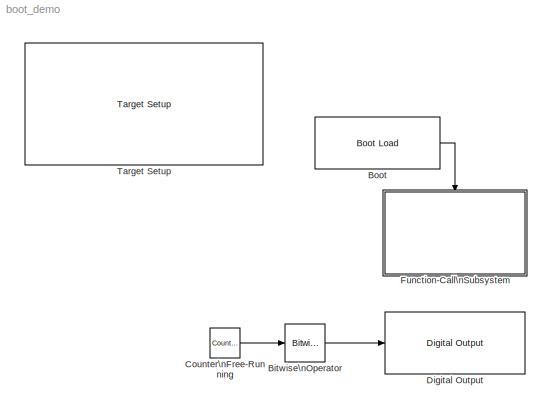
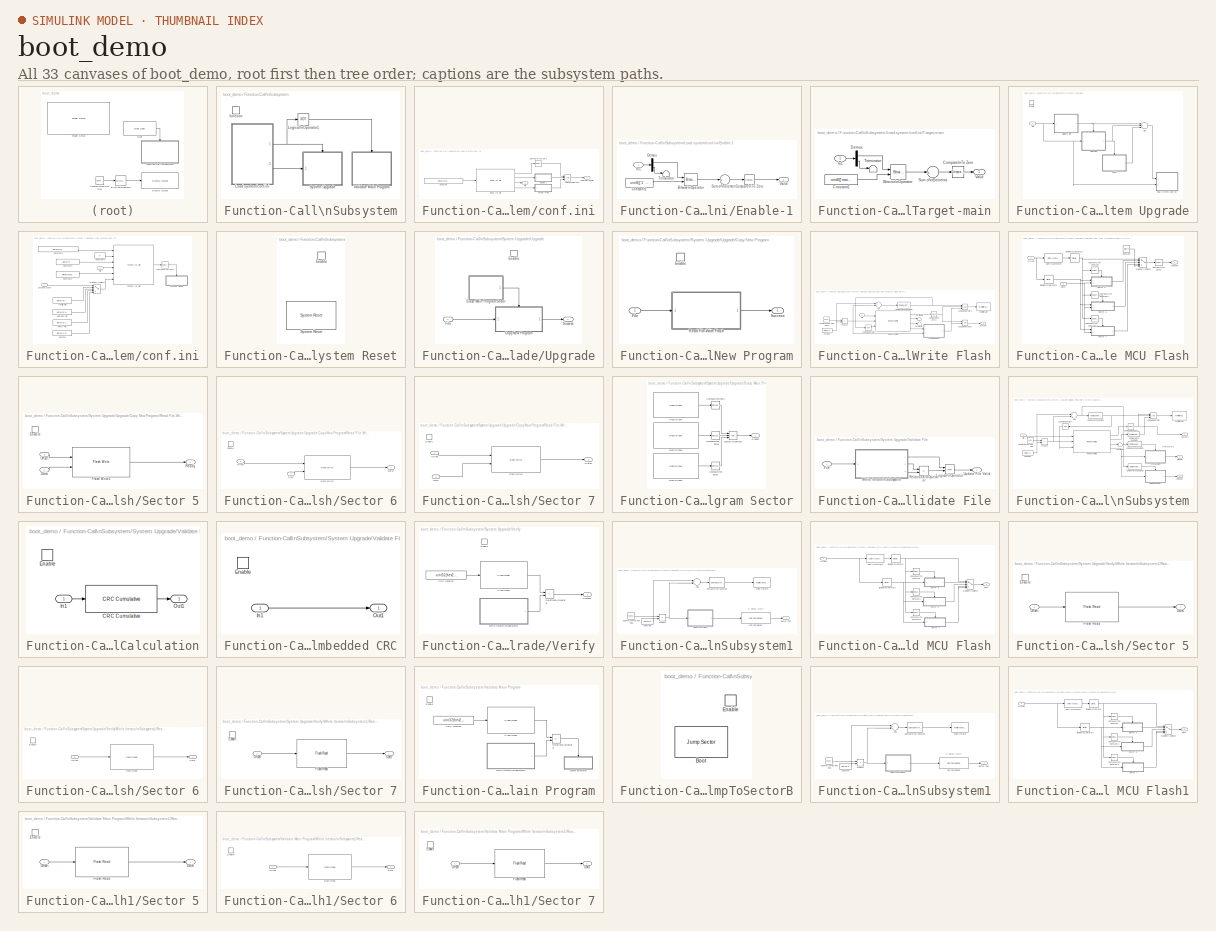
[diagram: thumbnail index - all 33 canvases of the model, root first then tree order]
MODEL boot_demo
KIND model
CONFIG PreLoadFcn = waijung.modelPreload; % Required for working with Waijung Blockset. Do not remove.
BLOCK [Reference] Bitwise\nOperator  REF=simulink/Logic and Bit\nOperations/Bitwise\nOperator
  BitMask = 1
  BitMaskRealWorld = Stored Integer
  NumInputPorts = 1
  Ports = [1, 1]
  SourceBlock = simulink/Logic and Bit\nOperations/Bitwise\nOperator
  SourceType = Bitwise Operator
  UseBitMask = on
  logicop = AND
BLOCK [Reference] Boot  REF=stm32f4_boot_lib/Boot Load
  Ports = [0, 1]
  SourceBlock = stm32f4_boot_lib/Boot Load
  SourceType = stm32f4_boot
  blockid = Boot
  compat = 0
  conf = Boot
  confstr = [\"080A0000\",\"9\"]
  enableisr = on
  flashlength = 0x100000
  flashorigin = 0x8000000
  inputarray = []
  inputlabelarray = {}
  outputarray = [7]
  outputlabelarray = {'Call ISR'}
  sampletime = -1
  sampletimestr = 0.01
  usersector = Sector 9: 0x080A0000 - 0x080BFFFF
BLOCK [Reference] Counter\nFree-Running  REF=simulink/Sources/Counter\nFree-Running
  FunctionWithSeparateData = off
  NumBits = 16
  Ports = [0, 1]
  RTWMemSecDataConstants = Inherit from model
  RTWMemSecDataInternal = Inherit from model
  RTWMemSecDataParameters = Inherit from model
  RTWMemSecFuncExecute = Inherit from model
  RTWMemSecFuncInitTerm = Inherit from model
  ShowPortLabels = FromPortIcon
  SourceBlock = simulink/Sources/Counter\nFree-Running
  SourceType = Counter Free-Running
  SystemSampleTime = -1
  tsamp = 0.5
BLOCK [Reference] Digital Output  REF=stm32f4_io_lib/Digital Output
  Ports = [1]
  SourceBlock = stm32f4_io_lib/Digital Output
  SourceType = stm32f4_digital_output
  bitbandingstr = \n#define DigitalOutput_D15 Peripheral_BB(GPIOD->ODR, 15)  /* Output pin */
  blockid = DigitalOutput
  cinputportlabel = In1, In2
  coutputportlabel = 0
  enablecustomportlabel = off
  globalinit = off
  pinstr = GPIO_Pin_15
  port = D
  porttype = Push Pull
  porttypestr = PP
  sampletime = -1
  sampletimestr = 0.5
  speed = 100
  use_bitband = on
  use_pin0 = off
  use_pin1 = off
  use_pin10 = off
  use_pin11 = off
  use_pin12 = off
  use_pin13 = off
  use_pin14 = off
  use_pin15 = on
  use_pin2 = off
  use_pin3 = off
  use_pin4 = off
  use_pin5 = off
  use_pin6 = off
  use_pin7 = off
  use_pin8 = off
  use_pin9 = off
  usedpinarray = [0  0  0  0  0  0  0  0  0  0  0  0  0  0  0  1]
BLOCK [SubSystem] Function-Call\nSubsystem
  FunctionWithSeparateData = off
  MaskHideContents = off
  MinAlgLoopOccurrences = off
  Opaque = off
  Ports = [0, 0, 0, 1]
  PropExecContextOutsideSubsystem = off
  RTWSystemCode = Auto
  RequestExecContextInheritance = off
  TreatAsAtomicUnit = on
BLOCK [SubSystem] Function-Call\nSubsystem/Load system//conf.ini
  FunctionWithSeparateData = off
  MaskHideContents = off
  MinAlgLoopOccurrences = off
  Opaque = off
  Ports = [0, 2]
  PropExecContextOutsideSubsystem = off
  RTWSystemCode = Auto
  RequestExecContextInheritance = off
  TreatAsAtomicUnit = on
BLOCK [Reference] Function-Call\nSubsystem/Load system//conf.ini/Compare\nTo Zero  REF=simulink/Logic and Bit\nOperations/Compare\nTo Zero
  FunctionWithSeparateData = off
  LogicOutDataTypeMode = uint8
  Ports = [1, 1]
  RTWMemSecDataConstants = Inherit from model
  RTWMemSecDataInternal = Inherit from model
  RTWMemSecDataParameters = Inherit from model
  RTWMemSecFuncExecute = Inherit from model
  RTWMemSecFuncInitTerm = Inherit from model
  ShowPortLabels = FromPortIcon
  SourceBlock = simulink/Logic and Bit\nOperations/Compare\nTo Zero
  SourceType = Compare To Zero
  SystemSampleTime = -1
  ZeroCross = off
  relop = ==
BLOCK [Constant] Function-Call\nSubsystem/Load system//conf.ini/Constant
  OutDataType = fixdt(1, 16)
  OutScaling = 2^0
  Value = uint8(['system\\upgrade\\conf.ini' 0])
BLOCK [SubSystem] Function-Call\nSubsystem/Load system//conf.ini/Enable-1
  FunctionWithSeparateData = off
  MaskHideContents = off
  MinAlgLoopOccurrences = off
  Opaque = off
  Ports = [1, 1]
  PropExecContextOutsideSubsystem = off
  RTWSystemCode = Auto
  RequestExecContextInheritance = off
BLOCK [Reference] Function-Call\nSubsystem/Load system//conf.ini/Enable-1/Bitwise\nOperator  REF=simulink/Logic and Bit\nOperations/Bitwise\nOperator
  BitMask = bin2dec('11011001')
  BitMaskRealWorld = Stored Integer
  NumInputPorts = 2
  Ports = [2, 1]
  SourceBlock = simulink/Logic and Bit\nOperations/Bitwise\nOperator
  SourceType = Bitwise Operator
  UseBitMask = off
  logicop = XOR
BLOCK [Reference] Function-Call\nSubsystem/Load system//conf.ini/Enable-1/Compare\nTo Zero  REF=simulink/Logic and Bit\nOperations/Compare\nTo Zero
  FunctionWithSeparateData = off
  LogicOutDataTypeMode = uint8
  Ports = [1, 1]
  RTWMemSecDataConstants = Inherit from model
  RTWMemSecDataInternal = Inherit from model
  RTWMemSecDataParameters = Inherit from model
  RTWMemSecFuncExecute = Inherit from model
  RTWMemSecFuncInitTerm = Inherit from model
  ShowPortLabels = FromPortIcon
  SourceBlock = simulink/Logic and Bit\nOperations/Compare\nTo Zero
  SourceType = Compare To Zero
  SystemSampleTime = -1
  ZeroCross = off
  relop = ==
BLOCK [Constant] Function-Call\nSubsystem/Load system//conf.ini/Enable-1/Constant1
  OutDataType = fixdt(1, 16)
  OutScaling = 2^0
  Value = uint8(['1' 0])
BLOCK [Demux] Function-Call\nSubsystem/Load system//conf.ini/Enable-1/Demux
  DisplayOption = bar
  Outputs = [2 -1]
  Ports = [1, 2]
BLOCK [Inport] Function-Call\nSubsystem/Load system//conf.ini/Enable-1/In1
  IconDisplay = Port number
BLOCK [Sum] Function-Call\nSubsystem/Load system//conf.ini/Enable-1/Sum of\nElements
  InputSameDT = off
  Inputs = +
  OutDataType = fixdt(1, 16)
  OutDataTypeMode = Inherit via internal rule
  OutDataTypeStr = Inherit: Inherit via internal rule
  OutScaling = 2^-10
  Ports = [1, 1]
  SaturateOnIntegerOverflow = off
BLOCK [Terminator] Function-Call\nSubsystem/Load system//conf.ini/Enable-1/Terminator
BLOCK [Outport] Function-Call\nSubsystem/Load system//conf.ini/Enable-1/Valid
  IconDisplay = Port number
BLOCK [Outport] Function-Call\nSubsystem/Load system//conf.ini/File
  IconDisplay = Port number
  OutDataType = fixdt(1, 16)
  OutScaling = 2^0
  Port = 2
BLOCK [Logic] Function-Call\nSubsystem/Load system//conf.ini/Logical\nOperator
  AllPortsSameDT = off
  Inputs = 3
  LogicDataType = fixdt(0, 8)
  OutDataTypeMode = boolean
  OutDataTypeStr = boolean
  Ports = [3, 1]
BLOCK [Reference] Function-Call\nSubsystem/Load system//conf.ini/Read INI File  REF=waijung_filestream_lib/Read INI File
  Ports = [1, 4]
  SourceBlock = waijung_filestream_lib/Read INI File
  SourceType = waijung_filestream
  blockid = FunctionCallSubsystemLoadsystemconfiniReadINIFile
  compat = 0
  conf = INIRead
  datacount = 1
  datatype = double
  inikeylist = [\"Enable\",\"File\",\"Target\"]
  inikeys = {'Enable','File','Target'}
  inisection = 'Upgrade'
  inputportlabel = {'FilePath'}
  inputporttype = [-1]
  inputportwidth = [-1]
  maxstring = 128
  optionstring = [\"Upgrade\",\"128\"]
  outputportlabel = {'Status' 'Enable' 'File' 'Target'}
  outputporttype = [6 3 3 3]
  outputportwidth = [1 128 128 128]
  portpinstr = 0
  sampletime = inf
  valuetype = Vector
BLOCK [SubSystem] Function-Call\nSubsystem/Load system//conf.ini/Target-main
  FunctionWithSeparateData = off
  MaskHideContents = off
  MinAlgLoopOccurrences = off
  Opaque = off
  Ports = [1, 1]
  PropExecContextOutsideSubsystem = off
  RTWSystemCode = Auto
  RequestExecContextInheritance = off
BLOCK [Reference] Function-Call\nSubsystem/Load system//conf.ini/Target-main/Bitwise\nOperator  REF=simulink/Logic and Bit\nOperations/Bitwise\nOperator
  BitMask = bin2dec('11011001')
  BitMaskRealWorld = Stored Integer
  NumInputPorts = 2
  Ports = [2, 1]
  SourceBlock = simulink/Logic and Bit\nOperations/Bitwise\nOperator
  SourceType = Bitwise Operator
  UseBitMask = off
  logicop = XOR
BLOCK [Reference] Function-Call\nSubsystem/Load system//conf.ini/Target-main/Compare\nTo Zero  REF=simulink/Logic and Bit\nOperations/Compare\nTo Zero
  FunctionWithSeparateData = off
  LogicOutDataTypeMode = uint8
  Ports = [1, 1]
  RTWMemSecDataConstants = Inherit from model
  RTWMemSecDataInternal = Inherit from model
  RTWMemSecDataParameters = Inherit from model
  RTWMemSecFuncExecute = Inherit from model
  RTWMemSecFuncInitTerm = Inherit from model
  ShowPortLabels = FromPortIcon
  SourceBlock = simulink/Logic and Bit\nOperations/Compare\nTo Zero
  SourceType = Compare To Zero
  SystemSampleTime = -1
  ZeroCross = off
  relop = ==
BLOCK [Constant] Function-Call\nSubsystem/Load system//conf.ini/Target-main/Constant1
  OutDataType = fixdt(1, 16)
  OutScaling = 2^0
  Value = uint8(['main' 0])
BLOCK [Demux] Function-Call\nSubsystem/Load system//conf.ini/Target-main/Demux
  DisplayOption = bar
  Outputs = [5 -1]
  Ports = [1, 2]
BLOCK [Inport] Function-Call\nSubsystem/Load system//conf.ini/Target-main/In1
  IconDisplay = Port number
BLOCK [Sum] Function-Call\nSubsystem/Load system//conf.ini/Target-main/Sum of\nElements
  InputSameDT = off
  Inputs = +
  OutDataType = fixdt(1, 16)
  OutDataTypeMode = Inherit via internal rule
  OutDataTypeStr = Inherit: Inherit via internal rule
  OutScaling = 2^-10
  Ports = [1, 1]
  SaturateOnIntegerOverflow = off
BLOCK [Terminator] Function-Call\nSubsystem/Load system//conf.ini/Target-main/Terminator
BLOCK [Outport] Function-Call\nSubsystem/Load system//conf.ini/Target-main/Valid
  IconDisplay = Port number
BLOCK [Outport] Function-Call\nSubsystem/Load system//conf.ini/Upgrade Enable
  IconDisplay = Port number
  OutDataType = fixdt(1, 16)
  OutScaling = 2^0
BLOCK [Logic] Function-Call\nSubsystem/Logical\nOperator1
  AllPortsSameDT = off
  LogicDataType = fixdt(0, 8)
  Operator = NOT
  OutDataTypeMode = boolean
  OutDataTypeStr = boolean
  Ports = [1, 1]
BLOCK [SubSystem] Function-Call\nSubsystem/System Upgrade
  FunctionWithSeparateData = off
  MaskHideContents = off
  MinAlgLoopOccurrences = off
  Opaque = off
  Ports = [1, 0, 1]
  PropExecContextOutsideSubsystem = off
  RTWSystemCode = Auto
  RequestExecContextInheritance = off
BLOCK [Sum] Function-Call\nSubsystem/System Upgrade/Add
  InputSameDT = off
  Inputs = +++
  OutDataType = fixdt(1, 16)
  OutDataTypeMode = Inherit via internal rule
  OutDataTypeStr = Inherit: Inherit via internal rule
  OutScaling = 2^-10
  Ports = [3, 1]
  SaturateOnIntegerOverflow = off
BLOCK [SubSystem] Function-Call\nSubsystem/System Upgrade/Clear system//conf.ini
  FunctionWithSeparateData = off
  MaskHideContents = off
  MinAlgLoopOccurrences = off
  Opaque = off
  Ports = [2]
  PropExecContextOutsideSubsystem = off
  RTWSystemCode = Auto
  RequestExecContextInheritance = off
BLOCK [Reference] Function-Call\nSubsystem/System Upgrade/Clear system//conf.ini/Compare\nTo Zero  REF=simulink/Logic and Bit\nOperations/Compare\nTo Zero
  FunctionWithSeparateData = off
  LogicOutDataTypeMode = uint8
  Ports = [1, 1]
  RTWMemSecDataConstants = Inherit from model
  RTWMemSecDataInternal = Inherit from model
  RTWMemSecDataParameters = Inherit from model
  RTWMemSecFuncExecute = Inherit from model
  RTWMemSecFuncInitTerm = Inherit from model
  ShowPortLabels = FromPortIcon
  SourceBlock = simulink/Logic and Bit\nOperations/Compare\nTo Zero
  SourceType = Compare To Zero
  SystemSampleTime = -1
  ZeroCross = off
  relop = ==
BLOCK [Constant] Function-Call\nSubsystem/System Upgrade/Clear system//conf.ini/Constant1
  OutDataType = fixdt(1, 16)
  OutScaling = 2^0
  Value = uint8(['system\\upgrade\\conf.ini' 0])
BLOCK [Constant] Function-Call\nSubsystem/System Upgrade/Clear system//conf.ini/Constant2
  OutDataType = fixdt(1, 16)
  OutScaling = 2^0
  Value = uint8(['main' 0])
BLOCK [Constant] Function-Call\nSubsystem/System Upgrade/Clear system//conf.ini/Constant3
  OutDataType = fixdt(1, 16)
  OutScaling = 2^0
  Value = uint8(['0' 0 0 0 0 0 0 0])
BLOCK [Constant] Function-Call\nSubsystem/System Upgrade/Clear system//conf.ini/Constant5
  OutDataType = fixdt(1, 16)
  OutScaling = 2^0
  Value = 0
BLOCK [Reference] Function-Call\nSubsystem/System Upgrade/Clear system//conf.ini/Create INI File  REF=waijung_filestream_lib/Create INI File
  Ports = [6, 1]
  SourceBlock = waijung_filestream_lib/Create INI File
  SourceType = waijung_filestream
  blockid = FunctionCallSubsystemSystemUpgradeClearsystemconfiniCreateINIFile
  compat = 0
  conf = INICreate
  datacount = 1
  datatype = double
  inikeylist = [\"Enable\",\"File\",\"Target\",\"Status\"]
  inikeys = {'Enable','File','Target','Status'}
  inisection = 'Upgrade'
  inputportlabel = {'FilePath','Append' 'Enable' 'File' 'Target' 'Status'}
  inputporttype = [-1 -1 -1 -1 -1 -1]
  inputportwidth = [-1 1 -1 -1 -1 -1]
  maxstring = 32
  optionstring = [\"Upgrade\",\"32\"]
  outputportlabel = {'Status'}
  outputporttype = [6]
  outputportwidth = []
  portpinstr = 0
  sampletime = inf
  valuetype = Pointer
BLOCK [Inport] Function-Call\nSubsystem/System Upgrade/Clear system//conf.ini/File
  IconDisplay = Port number
  OutDataType = fixdt(1, 16)
  OutScaling = 2^0
  Port = 2
BLOCK [Constant] Function-Call\nSubsystem/System Upgrade/Clear system//conf.ini/Invalid File
  OutDataType = fixdt(1, 16)
  OutScaling = 2^0
  Value = uint8(['0,Invalid' 0 0 0 0 0 0 0 0])
BLOCK [MultiPortSwitch] Function-Call\nSubsystem/System Upgrade/Clear system//conf.ini/Multiport\nSwitch
  InputSameDT = off
  Inputs = 4
  OutDataType = fixdt(1, 16)
  OutScaling = 2^0
  Ports = [5, 1]
  SaturateOnIntegerOverflow = off
  zeroidx = on
BLOCK [Constant] Function-Call\nSubsystem/System Upgrade/Clear system//conf.ini/Success
  OutDataType = fixdt(1, 16)
  OutScaling = 2^0
  Value = uint8(['1,Success.' 0 0 0 0 0 0 0])
BLOCK [Inport] Function-Call\nSubsystem/System Upgrade/Clear system//conf.ini/Success State
  IconDisplay = Port number
  OutDataType = fixdt(1, 16)
  OutScaling = 2^0
BLOCK [SubSystem] Function-Call\nSubsystem/System Upgrade/Clear system//conf.ini/System Reset
  FunctionWithSeparateData = off
  MaskHideContents = off
  MinAlgLoopOccurrences = off
  Opaque = off
  Ports = [0, 0, 1]
  PropExecContextOutsideSubsystem = off
  RTWSystemCode = Auto
  RequestExecContextInheritance = off
  TreatAsAtomicUnit = on
BLOCK [EnablePort] Function-Call\nSubsystem/System Upgrade/Clear system//conf.ini/System Reset/Enable
  Ports = []
BLOCK [Reference] Function-Call\nSubsystem/System Upgrade/Clear system//conf.ini/System Reset/System Reset  REF=stm32f4_reset_lib/System Reset
  Ports = []
  SourceBlock = stm32f4_reset_lib/System Reset
  SourceType = stm32f4_reset
  blockid = FunctionCallSubsystemSystemUpgradeClearsystemconfiniSystemResetSystemReset
  compat = 0
  conf = <empty>
  confstr = [\"Param1\",\"Param1\"]
  inputarray = []
  inputlabelarray = {}
  outputarray = []
  outputlabelarray = {}
  sampletime = inf
  sampletimestr = -1
BLOCK [Constant] Function-Call\nSubsystem/System Upgrade/Clear system//conf.ini/Upgrade Fail
  OutDataType = fixdt(1, 16)
  OutScaling = 2^0
  Value = uint8(['0,Upgrade Failed' 0])
BLOCK [Constant] Function-Call\nSubsystem/System Upgrade/Clear system//conf.ini/Verify Fail
  OutDataType = fixdt(1, 16)
  OutScaling = 2^0
  Value = uint8(['0,Verify Failed' 0 0])
BLOCK [EnablePort] Function-Call\nSubsystem/System Upgrade/Enable
  Ports = []
BLOCK [Inport] Function-Call\nSubsystem/System Upgrade/File
  IconDisplay = Port number
  OutDataType = fixdt(1, 16)
  OutScaling = 2^0
BLOCK [SubSystem] Function-Call\nSubsystem/System Upgrade/Upgrade
  FunctionWithSeparateData = off
  MaskHideContents = off
  MinAlgLoopOccurrences = off
  Opaque = off
  Ports = [1, 1, 1]
  PropExecContextOutsideSubsystem = off
  RTWSystemCode = Auto
  RequestExecContextInheritance = off
  TreatAsAtomicUnit = on
BLOCK [SubSystem] Function-Call\nSubsystem/System Upgrade/Upgrade/Copy New Program
  FunctionWithSeparateData = off
  MaskHideContents = off
  MinAlgLoopOccurrences = off
  Opaque = off
  Ports = [1, 1, 1]
  PropExecContextOutsideSubsystem = off
  RTWSystemCode = Auto
  RequestExecContextInheritance = off
  TreatAsAtomicUnit = on
BLOCK [EnablePort] Function-Call\nSubsystem/System Upgrade/Upgrade/Copy New Program/Enable
  Ports = []
BLOCK [Inport] Function-Call\nSubsystem/System Upgrade/Upgrade/Copy New Program/File
  IconDisplay = Port number
  OutDataType = fixdt(1, 16)
  OutScaling = 2^0
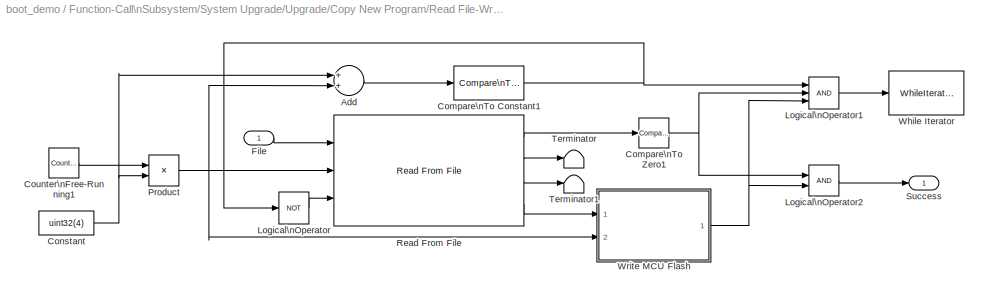
BLOCK [SubSystem] Function-Call\nSubsystem/System Upgrade/Upgrade/Copy New Program/Read File-Write Flash
  FunctionWithSeparateData = off
  MaskHideContents = off
  MinAlgLoopOccurrences = off
  Opaque = off
  Ports = [1, 1]
  PropExecContextOutsideSubsystem = off
  RTWSystemCode = Auto
  RequestExecContextInheritance = off
  TreatAsAtomicUnit = on
BLOCK [Sum] Function-Call\nSubsystem/System Upgrade/Upgrade/Copy New Program/Read File-Write Flash/Add
  InputSameDT = off
  OutDataType = fixdt(1, 16)
  OutDataTypeMode = Inherit via internal rule
  OutDataTypeStr = Inherit: Inherit via internal rule
  OutScaling = 2^-10
  Ports = [2, 1]
  SaturateOnIntegerOverflow = off
BLOCK [Reference] Function-Call\nSubsystem/System Upgrade/Upgrade/Copy New Program/Read File-Write Flash/Compare\nTo Constant1  REF=simulink/Logic and Bit\nOperations/Compare\nTo Constant
  FunctionWithSeparateData = off
  LogicOutDataTypeMode = uint8
  Ports = [1, 1]
  RTWMemSecDataConstants = Inherit from model
  RTWMemSecDataInternal = Inherit from model
  RTWMemSecDataParameters = Inherit from model
  RTWMemSecFuncExecute = Inherit from model
  RTWMemSecFuncInitTerm = Inherit from model
  ShowPortLabels = FromPortIcon
  SourceBlock = simulink/Logic and Bit\nOperations/Compare\nTo Constant
  SourceType = Compare To Constant
  SystemSampleTime = -1
  ZeroCross = off
  const = hex2dec('60000')
  relop = <
BLOCK [Reference] Function-Call\nSubsystem/System Upgrade/Upgrade/Copy New Program/Read File-Write Flash/Compare\nTo Zero1  REF=simulink/Logic and Bit\nOperations/Compare\nTo Zero
  FunctionWithSeparateData = off
  LogicOutDataTypeMode = uint8
  Ports = [1, 1]
  RTWMemSecDataConstants = Inherit from model
  RTWMemSecDataInternal = Inherit from model
  RTWMemSecDataParameters = Inherit from model
  RTWMemSecFuncExecute = Inherit from model
  RTWMemSecFuncInitTerm = Inherit from model
  ShowPortLabels = FromPortIcon
  SourceBlock = simulink/Logic and Bit\nOperations/Compare\nTo Zero
  SourceType = Compare To Zero
  SystemSampleTime = -1
  ZeroCross = off
  relop = ==
BLOCK [Constant] Function-Call\nSubsystem/System Upgrade/Upgrade/Copy New Program/Read File-Write Flash/Constant
  OutDataType = fixdt(1, 16)
  OutScaling = 2^0
  Value = uint32(4)
BLOCK [Reference] Function-Call\nSubsystem/System Upgrade/Upgrade/Copy New Program/Read File-Write Flash/Counter\nFree-Running1  REF=simulink/Sources/Counter\nFree-Running
  FunctionWithSeparateData = off
  NumBits = 32
  Ports = [0, 1]
  RTWMemSecDataConstants = Inherit from model
  RTWMemSecDataInternal = Inherit from model
  RTWMemSecDataParameters = Inherit from model
  RTWMemSecFuncExecute = Inherit from model
  RTWMemSecFuncInitTerm = Inherit from model
  ShowPortLabels = FromPortIcon
  SourceBlock = simulink/Sources/Counter\nFree-Running
  SourceType = Counter Free-Running
  SystemSampleTime = -1
  tsamp = -1
BLOCK [Inport] Function-Call\nSubsystem/System Upgrade/Upgrade/Copy New Program/Read File-Write Flash/File
  IconDisplay = Port number
  OutDataType = fixdt(1, 16)
  OutScaling = 2^0
BLOCK [Logic] Function-Call\nSubsystem/System Upgrade/Upgrade/Copy New Program/Read File-Write Flash/Logical\nOperator
  AllPortsSameDT = off
  LogicDataType = fixdt(0, 8)
  Operator = NOT
  OutDataTypeMode = boolean
  OutDataTypeStr = boolean
  Ports = [1, 1]
BLOCK [Logic] Function-Call\nSubsystem/System Upgrade/Upgrade/Copy New Program/Read File-Write Flash/Logical\nOperator1
  AllPortsSameDT = off
  Inputs = 3
  LogicDataType = fixdt(0, 8)
  OutDataTypeMode = boolean
  OutDataTypeStr = boolean
  Ports = [3, 1]
BLOCK [Logic] Function-Call\nSubsystem/System Upgrade/Upgrade/Copy New Program/Read File-Write Flash/Logical\nOperator2
  AllPortsSameDT = off
  LogicDataType = fixdt(0, 8)
  OutDataTypeMode = boolean
  OutDataTypeStr = boolean
  Ports = [2, 1]
BLOCK [Product] Function-Call\nSubsystem/System Upgrade/Upgrade/Copy New Program/Read File-Write Flash/Product
  InputSameDT = off
  OutDataType = fixdt(1, 16)
  OutDataTypeMode = uint32
  OutDataTypeStr = uint32
  OutScaling = 2^0
  Ports = [2, 1]
  SaturateOnIntegerOverflow = off
BLOCK [Reference] Function-Call\nSubsystem/System Upgrade/Upgrade/Copy New Program/Read File-Write Flash/Read From File  REF=waijung_filestream_lib/Read From File
  Ports = [3, 4]
  SourceBlock = waijung_filestream_lib/Read From File
  SourceType = waijung_filestream
  blockid = FunctionCallSubsystemSystemUpgradeUpgradeCopyNewProgramReadFileWriteFlashReadFromFile
  compat = 0
  conf = ReadFromFile
  datacount = 1
  datatype = uint32
  inikeylist = [\"Action\",\"File\"]
  inikeys = {'Action','File'}
  inisection = 'Boot'
  inputportlabel = {'FilePath','SeekPos','Close'}
  inputporttype = [-1 -1 -1]
  inputportwidth = [-1 1 1]
  maxstring = 32
  optionstring = [\"Boot\",\"32\"]
  outputportlabel = {'Status','TotalSize','CurrentPos','Data (uint32)'}
  outputporttype = [6 7 7 7]
  outputportwidth = [1 1 1 1]
  portpinstr = 0
  sampletime = inf
  valuetype = Pointer
BLOCK [Outport] Function-Call\nSubsystem/System Upgrade/Upgrade/Copy New Program/Read File-Write Flash/Success
  IconDisplay = Port number
  OutDataType = fixdt(1, 16)
  OutScaling = 2^0
BLOCK [Terminator] Function-Call\nSubsystem/System Upgrade/Upgrade/Copy New Program/Read File-Write Flash/Terminator
BLOCK [Terminator] Function-Call\nSubsystem/System Upgrade/Upgrade/Copy New Program/Read File-Write Flash/Terminator1
BLOCK [WhileIterator] Function-Call\nSubsystem/System Upgrade/Upgrade/Copy New Program/Read File-Write Flash/While Iterator
  MaxIters = -1
  Ports = [1]
  WhileBlockType = do-while
BLOCK [SubSystem] Function-Call\nSubsystem/System Upgrade/Upgrade/Copy New Program/Read File-Write Flash/Write MCU Flash
  FunctionWithSeparateData = off
  MaskHideContents = off
  MinAlgLoopOccurrences = off
  Opaque = off
  Ports = [2, 1]
  PropExecContextOutsideSubsystem = off
  RTWSystemCode = Auto
  RequestExecContextInheritance = off
BLOCK [Reference] Function-Call\nSubsystem/System Upgrade/Upgrade/Copy New Program/Read File-Write Flash/Write MCU Flash/Bitwise\nOperator1  REF=simulink/Logic and Bit\nOperations/Bitwise\nOperator
  BitMask = 3
  BitMaskRealWorld = Stored Integer
  NumInputPorts = 1
  Ports = [1, 1]
  SourceBlock = simulink/Logic and Bit\nOperations/Bitwise\nOperator
  SourceType = Bitwise Operator
  UseBitMask = on
  logicop = AND
BLOCK [Reference] Function-Call\nSubsystem/System Upgrade/Upgrade/Copy New Program/Read File-Write Flash/Write MCU Flash/Bitwise\nOperator2  REF=simulink/Logic and Bit\nOperations/Bitwise\nOperator
  BitMask = hex2dec('1FFFF')
  BitMaskRealWorld = Stored Integer
  NumInputPorts = 1
  Ports = [1, 1]
  SourceBlock = simulink/Logic and Bit\nOperations/Bitwise\nOperator
  SourceType = Bitwise Operator
  UseBitMask = on
  logicop = AND
BLOCK [Reference] Function-Call\nSubsystem/System Upgrade/Upgrade/Copy New Program/Read File-Write Flash/Write MCU Flash/Compare\nTo Constant  REF=simulink/Logic and Bit\nOperations/Compare\nTo Constant
  FunctionWithSeparateData = off
  LogicOutDataTypeMode = uint8
  Ports = [1, 1]
  RTWMemSecDataConstants = Inherit from model
  RTWMemSecDataInternal = Inherit from model
  RTWMemSecDataParameters = Inherit from model
  RTWMemSecFuncExecute = Inherit from model
  RTWMemSecFuncInitTerm = Inherit from model
  ShowPortLabels = FromPortIcon
  SourceBlock = simulink/Logic and Bit\nOperations/Compare\nTo Constant
  SourceType = Compare To Constant
  SystemSampleTime = -1
  ZeroCross = off
  const = 0
  relop = ==
BLOCK [Reference] Function-Call\nSubsystem/System Upgrade/Upgrade/Copy New Program/Read File-Write Flash/Write MCU Flash/Compare\nTo Constant1  REF=simulink/Logic and Bit\nOperations/Compare\nTo Constant
  FunctionWithSeparateData = off
  LogicOutDataTypeMode = uint8
  Ports = [1, 1]
  RTWMemSecDataConstants = Inherit from model
  RTWMemSecDataInternal = Inherit from model
  RTWMemSecDataParameters = Inherit from model
  RTWMemSecFuncExecute = Inherit from model
  RTWMemSecFuncInitTerm = Inherit from model
  ShowPortLabels = FromPortIcon
  SourceBlock = simulink/Logic and Bit\nOperations/Compare\nTo Constant
  SourceType = Compare To Constant
  SystemSampleTime = -1
  ZeroCross = off
  const = 1
  relop = ==
BLOCK [Reference] Function-Call\nSubsystem/System Upgrade/Upgrade/Copy New Program/Read File-Write Flash/Write MCU Flash/Compare\nTo Constant2  REF=simulink/Logic and Bit\nOperations/Compare\nTo Constant
  FunctionWithSeparateData = off
  LogicOutDataTypeMode = uint8
  Ports = [1, 1]
  RTWMemSecDataConstants = Inherit from model
  RTWMemSecDataInternal = Inherit from model
  RTWMemSecDataParameters = Inherit from model
  RTWMemSecFuncExecute = Inherit from model
  RTWMemSecFuncInitTerm = Inherit from model
  ShowPortLabels = FromPortIcon
  SourceBlock = simulink/Logic and Bit\nOperations/Compare\nTo Constant
  SourceType = Compare To Constant
  SystemSampleTime = -1
  ZeroCross = off
  const = 2
  relop = ==
BLOCK [Reference] Function-Call\nSubsystem/System Upgrade/Upgrade/Copy New Program/Read File-Write Flash/Write MCU Flash/Compare\nTo Zero3  REF=simulink/Logic and Bit\nOperations/Compare\nTo Zero
  FunctionWithSeparateData = off
  LogicOutDataTypeMode = uint8
  Ports = [1, 1]
  RTWMemSecDataConstants = Inherit from model
  RTWMemSecDataInternal = Inherit from model
  RTWMemSecDataParameters = Inherit from model
  RTWMemSecFuncExecute = Inherit from model
  RTWMemSecFuncInitTerm = Inherit from model
  ShowPortLabels = FromPortIcon
  SourceBlock = simulink/Logic and Bit\nOperations/Compare\nTo Zero
  SourceType = Compare To Zero
  SystemSampleTime = -1
  ZeroCross = off
  relop = ==
BLOCK [Constant] Function-Call\nSubsystem/System Upgrade/Upgrade/Copy New Program/Read File-Write Flash/Write MCU Flash/Constant
  OutDataType = fixdt(1, 16)
  OutScaling = 2^0
  Value = uint8(1)
BLOCK [Inport] Function-Call\nSubsystem/System Upgrade/Upgrade/Copy New Program/Read File-Write Flash/Write MCU Flash/Data
  IconDisplay = Port number
BLOCK [MultiPortSwitch] Function-Call\nSubsystem/System Upgrade/Upgrade/Copy New Program/Read File-Write Flash/Write MCU Flash/Multiport\nSwitch
  InputSameDT = off
  Inputs = 4
  OutDataType = fixdt(1, 16)
  OutScaling = 2^0
  Ports = [5, 1]
  SaturateOnIntegerOverflow = off
  zeroidx = on
BLOCK [Inport] Function-Call\nSubsystem/System Upgrade/Upgrade/Copy New Program/Read File-Write Flash/Write MCU Flash/Offset
  IconDisplay = Port number
  Port = 2
BLOCK [SubSystem] Function-Call\nSubsystem/System Upgrade/Upgrade/Copy New Program/Read File-Write Flash/Write MCU Flash/Sector 5
  FunctionWithSeparateData = off
  MaskHideContents = off
  MinAlgLoopOccurrences = off
  Opaque = off
  Ports = [2, 1, 1]
  PropExecContextOutsideSubsystem = off
  RTWSystemCode = Auto
  RequestExecContextInheritance = off
  TreatAsAtomicUnit = on
BLOCK [Inport] Function-Call\nSubsystem/System Upgrade/Upgrade/Copy New Program/Read File-Write Flash/Write MCU Flash/Sector 5/Data
  IconDisplay = Port number
  OutDataType = fixdt(1, 16)
  OutScaling = 2^0
  Port = 2
BLOCK [EnablePort] Function-Call\nSubsystem/System Upgrade/Upgrade/Copy New Program/Read File-Write Flash/Write MCU Flash/Sector 5/Enable
  Ports = []
BLOCK [Reference] Function-Call\nSubsystem/System Upgrade/Upgrade/Copy New Program/Read File-Write Flash/Write MCU Flash/Sector 5/Flash Write1  REF=stm32f4_flash_lib/Flash Write
  Ports = [2, 1]
  SourceBlock = stm32f4_flash_lib/Flash Write
  SourceType = stm32f4_flash
  blockid = FunctionCallSubsystemSystemUpgradeUpgradeCopyNewProgramReadFileWriteFlashWriteMCUFlashSector5FlashWrite1
  compat = 0
  conf = Program
  confstr = [\"Blocking\",\"uint32\",\"on\",\"20000\",\"08020000\",\"5\"]
  datacount = 1
  datatype = uint32
  enablestatus = on
  flashsector = Sector 5: 0x08020000 - 0x0803FFFF
  inputarray = [-1,7]
  inputlabelarray = {'Offset ', 'Data (uint32)'}
  outputarray = [3]
  outputlabelarray = {'Status'}
  sampletime = -1
  sampletimestr = -1
  transfer = Blocking
BLOCK [Inport] Function-Call\nSubsystem/System Upgrade/Upgrade/Copy New Program/Read File-Write Flash/Write MCU Flash/Sector 5/Offset
  IconDisplay = Port number
  OutDataType = fixdt(1, 16)
  OutScaling = 2^0
BLOCK [Outport] Function-Call\nSubsystem/System Upgrade/Upgrade/Copy New Program/Read File-Write Flash/Write MCU Flash/Sector 5/Ready
  IconDisplay = Port number
  OutDataType = fixdt(1, 16)
  OutScaling = 2^0
BLOCK [SubSystem] Function-Call\nSubsystem/System Upgrade/Upgrade/Copy New Program/Read File-Write Flash/Write MCU Flash/Sector 6
  FunctionWithSeparateData = off
  MaskHideContents = off
  MinAlgLoopOccurrences = off
  Opaque = off
  Ports = [2, 1, 1]
  PropExecContextOutsideSubsystem = off
  RTWSystemCode = Auto
  RequestExecContextInheritance = off
  TreatAsAtomicUnit = on
BLOCK [Inport] Function-Call\nSubsystem/System Upgrade/Upgrade/Copy New Program/Read File-Write Flash/Write MCU Flash/Sector 6/Data
  IconDisplay = Port number
  OutDataType = fixdt(1, 16)
  OutScaling = 2^0
  Port = 2
BLOCK [EnablePort] Function-Call\nSubsystem/System Upgrade/Upgrade/Copy New Program/Read File-Write Flash/Write MCU Flash/Sector 6/Enable
  Ports = []
BLOCK [Reference] Function-Call\nSubsystem/System Upgrade/Upgrade/Copy New Program/Read File-Write Flash/Write MCU Flash/Sector 6/Flash Write1  REF=stm32f4_flash_lib/Flash Write
  Ports = [2, 1]
  SourceBlock = stm32f4_flash_lib/Flash Write
  SourceType = stm32f4_flash
  blockid = FunctionCallSubsystemSystemUpgradeUpgradeCopyNewProgramReadFileWriteFlashWriteMCUFlashSector6FlashWrite1
  compat = 0
  conf = Program
  confstr = [\"Blocking\",\"uint32\",\"on\",\"20000\",\"08040000\",\"6\"]
  datacount = 1
  datatype = uint32
  enablestatus = on
  flashsector = Sector 6: 0x08040000 - 0x0805FFFF
  inputarray = [-1,7]
  inputlabelarray = {'Offset ', 'Data (uint32)'}
  outputarray = [3]
  outputlabelarray = {'Status'}
  sampletime = -1
  sampletimestr = -1
  transfer = Blocking
BLOCK [Inport] Function-Call\nSubsystem/System Upgrade/Upgrade/Copy New Program/Read File-Write Flash/Write MCU Flash/Sector 6/Offset
  IconDisplay = Port number
  OutDataType = fixdt(1, 16)
  OutScaling = 2^0
BLOCK [Outport] Function-Call\nSubsystem/System Upgrade/Upgrade/Copy New Program/Read File-Write Flash/Write MCU Flash/Sector 6/Status
  IconDisplay = Port number
  OutDataType = fixdt(1, 16)
  OutScaling = 2^0
BLOCK [SubSystem] Function-Call\nSubsystem/System Upgrade/Upgrade/Copy New Program/Read File-Write Flash/Write MCU Flash/Sector 7
  FunctionWithSeparateData = off
  MaskHideContents = off
  MinAlgLoopOccurrences = off
  Opaque = off
  Ports = [2, 1, 1]
  PropExecContextOutsideSubsystem = off
  RTWSystemCode = Auto
  RequestExecContextInheritance = off
  TreatAsAtomicUnit = on
BLOCK [Inport] Function-Call\nSubsystem/System Upgrade/Upgrade/Copy New Program/Read File-Write Flash/Write MCU Flash/Sector 7/Data
  IconDisplay = Port number
  OutDataType = fixdt(1, 16)
  OutScaling = 2^0
  Port = 2
BLOCK [EnablePort] Function-Call\nSubsystem/System Upgrade/Upgrade/Copy New Program/Read File-Write Flash/Write MCU Flash/Sector 7/Enable
  Ports = []
BLOCK [Reference] Function-Call\nSubsystem/System Upgrade/Upgrade/Copy New Program/Read File-Write Flash/Write MCU Flash/Sector 7/Flash Write1  REF=stm32f4_flash_lib/Flash Write
  Ports = [2, 1]
  SourceBlock = stm32f4_flash_lib/Flash Write
  SourceType = stm32f4_flash
  blockid = FunctionCallSubsystemSystemUpgradeUpgradeCopyNewProgramReadFileWriteFlashWriteMCUFlashSector7FlashWrite1
  compat = 0
  conf = Program
  confstr = [\"Blocking\",\"uint32\",\"on\",\"20000\",\"08060000\",\"7\"]
  datacount = 1
  datatype = uint32
  enablestatus = on
  flashsector = Sector 7: 0x08060000 - 0x0807FFFF
  inputarray = [-1,7]
  inputlabelarray = {'Offset ', 'Data (uint32)'}
  outputarray = [3]
  outputlabelarray = {'Status'}
  sampletime = -1
  sampletimestr = -1
  transfer = Blocking
BLOCK [Inport] Function-Call\nSubsystem/System Upgrade/Upgrade/Copy New Program/Read File-Write Flash/Write MCU Flash/Sector 7/Offset
  IconDisplay = Port number
  OutDataType = fixdt(1, 16)
  OutScaling = 2^0
BLOCK [Outport] Function-Call\nSubsystem/System Upgrade/Upgrade/Copy New Program/Read File-Write Flash/Write MCU Flash/Sector 7/Status
  IconDisplay = Port number
  OutDataType = fixdt(1, 16)
  OutScaling = 2^0
BLOCK [Reference] Function-Call\nSubsystem/System Upgrade/Upgrade/Copy New Program/Read File-Write Flash/Write MCU Flash/Shift\nArithmetic  REF=simulink/Logic and Bit\nOperations/Shift\nArithmetic
  FunctionWithSeparateData = off
  Ports = [1, 1]
  RTWMemSecDataConstants = Inherit from model
  RTWMemSecDataInternal = Inherit from model
  RTWMemSecDataParameters = Inherit from model
  RTWMemSecFuncExecute = Inherit from model
  RTWMemSecFuncInitTerm = Inherit from model
  ShowPortLabels = FromPortIcon
  SourceBlock = simulink/Logic and Bit\nOperations/Shift\nArithmetic
  SourceType = Shift Arithmetic
  SystemSampleTime = -1
  nBinPtShiftRight = 0
  nBitShiftRight = 17
BLOCK [Outport] Function-Call\nSubsystem/System Upgrade/Upgrade/Copy New Program/Read File-Write Flash/Write MCU Flash/Success
  IconDisplay = Port number
BLOCK [Outport] Function-Call\nSubsystem/System Upgrade/Upgrade/Copy New Program/Success
  IconDisplay = Port number
  OutDataType = fixdt(1, 16)
  OutScaling = 2^0
BLOCK [EnablePort] Function-Call\nSubsystem/System Upgrade/Upgrade/Enable
  Ports = []
BLOCK [SubSystem] Function-Call\nSubsystem/System Upgrade/Upgrade/Erase Main Program Sector
  FunctionWithSeparateData = off
  MaskHideContents = off
  MinAlgLoopOccurrences = off
  Opaque = off
  Ports = [0, 1]
  PropExecContextOutsideSubsystem = off
  RTWSystemCode = Auto
  RequestExecContextInheritance = off
BLOCK [Reference] Function-Call\nSubsystem/System Upgrade/Upgrade/Erase Main Program Sector/Compare\nTo Zero  REF=simulink/Logic and Bit\nOperations/Compare\nTo Zero
  FunctionWithSeparateData = off
  LogicOutDataTypeMode = uint8
  Ports = [1, 1]
  RTWMemSecDataConstants = Inherit from model
  RTWMemSecDataInternal = Inherit from model
  RTWMemSecDataParameters = Inherit from model
  RTWMemSecFuncExecute = Inherit from model
  RTWMemSecFuncInitTerm = Inherit from model
  ShowPortLabels = FromPortIcon
  SourceBlock = simulink/Logic and Bit\nOperations/Compare\nTo Zero
  SourceType = Compare To Zero
  SystemSampleTime = -1
  ZeroCross = off
  relop = ==
BLOCK [Reference] Function-Call\nSubsystem/System Upgrade/Upgrade/Erase Main Program Sector/Compare\nTo Zero1  REF=simulink/Logic and Bit\nOperations/Compare\nTo Zero
  FunctionWithSeparateData = off
  LogicOutDataTypeMode = uint8
  Ports = [1, 1]
  RTWMemSecDataConstants = Inherit from model
  RTWMemSecDataInternal = Inherit from model
  RTWMemSecDataParameters = Inherit from model
  RTWMemSecFuncExecute = Inherit from model
  RTWMemSecFuncInitTerm = Inherit from model
  ShowPortLabels = FromPortIcon
  SourceBlock = simulink/Logic and Bit\nOperations/Compare\nTo Zero
  SourceType = Compare To Zero
  SystemSampleTime = -1
  ZeroCross = off
  relop = ==
BLOCK [Reference] Function-Call\nSubsystem/System Upgrade/Upgrade/Erase Main Program Sector/Compare\nTo Zero2  REF=simulink/Logic and Bit\nOperations/Compare\nTo Zero
  FunctionWithSeparateData = off
  LogicOutDataTypeMode = uint8
  Ports = [1, 1]
  RTWMemSecDataConstants = Inherit from model
  RTWMemSecDataInternal = Inherit from model
  RTWMemSecDataParameters = Inherit from model
  RTWMemSecFuncExecute = Inherit from model
  RTWMemSecFuncInitTerm = Inherit from model
  ShowPortLabels = FromPortIcon
  SourceBlock = simulink/Logic and Bit\nOperations/Compare\nTo Zero
  SourceType = Compare To Zero
  SystemSampleTime = -1
  ZeroCross = off
  relop = ==
BLOCK [Outport] Function-Call\nSubsystem/System Upgrade/Upgrade/Erase Main Program Sector/Erased
  IconDisplay = Port number
  OutDataType = fixdt(1, 16)
  OutScaling = 2^0
BLOCK [Reference] Function-Call\nSubsystem/System Upgrade/Upgrade/Erase Main Program Sector/Flash Erase  REF=stm32f4_flash_lib/Flash Erase
  Ports = [0, 1]
  SourceBlock = stm32f4_flash_lib/Flash Erase
  SourceType = stm32f4_flash
  blockid = FunctionCallSubsystemSystemUpgradeUpgradeEraseMainProgramSectorFlashErase
  compat = 0
  conf = Erase
  confstr = [\"Blocking\",\"on\",\"08020000\",\"5\"]
  datacount = 1
  datatype = uint32
  enablestatus = on
  flashsector = Sector 5: 0x08020000 - 0x0803FFFF
  inputarray = []
  inputlabelarray = {}
  outputarray = [3]
  outputlabelarray = {'Status'}
  sampletime = -1
  sampletimestr = -1
  transfer = Blocking
BLOCK [Reference] Function-Call\nSubsystem/System Upgrade/Upgrade/Erase Main Program Sector/Flash Erase1  REF=stm32f4_flash_lib/Flash Erase
  Ports = [0, 1]
  SourceBlock = stm32f4_flash_lib/Flash Erase
  SourceType = stm32f4_flash
  blockid = FunctionCallSubsystemSystemUpgradeUpgradeEraseMainProgramSectorFlashErase1
  compat = 0
  conf = Erase
  confstr = [\"Blocking\",\"on\",\"08040000\",\"6\"]
  datacount = 1
  datatype = uint32
  enablestatus = on
  flashsector = Sector 6: 0x08040000 - 0x0805FFFF
  inputarray = []
  inputlabelarray = {}
  outputarray = [3]
  outputlabelarray = {'Status'}
  sampletime = -1
  sampletimestr = -1
  transfer = Blocking
BLOCK [Reference] Function-Call\nSubsystem/System Upgrade/Upgrade/Erase Main Program Sector/Flash Erase2  REF=stm32f4_flash_lib/Flash Erase
  Ports = [0, 1]
  SourceBlock = stm32f4_flash_lib/Flash Erase
  SourceType = stm32f4_flash
  blockid = FunctionCallSubsystemSystemUpgradeUpgradeEraseMainProgramSectorFlashErase2
  compat = 0
  conf = Erase
  confstr = [\"Blocking\",\"on\",\"08060000\",\"7\"]
  datacount = 1
  datatype = uint32
  enablestatus = on
  flashsector = Sector 7: 0x08060000 - 0x0807FFFF
  inputarray = []
  inputlabelarray = {}
  outputarray = [3]
  outputlabelarray = {'Status'}
  sampletime = -1
  sampletimestr = -1
  transfer = Blocking
BLOCK [Logic] Function-Call\nSubsystem/System Upgrade/Upgrade/Erase Main Program Sector/Logical\nOperator
  AllPortsSameDT = off
  Inputs = 3
  LogicDataType = fixdt(0, 8)
  OutDataTypeMode = boolean
  OutDataTypeStr = boolean
  Ports = [3, 1]
BLOCK [Inport] Function-Call\nSubsystem/System Upgrade/Upgrade/File
  IconDisplay = Port number
  OutDataType = fixdt(1, 16)
  OutScaling = 2^0
BLOCK [Outport] Function-Call\nSubsystem/System Upgrade/Upgrade/Success
  IconDisplay = Port number
  OutDataType = fixdt(1, 16)
  OutScaling = 2^0
BLOCK [SubSystem] Function-Call\nSubsystem/System Upgrade/Validate File
  FunctionWithSeparateData = off
  MaskHideContents = off
  MinAlgLoopOccurrences = off
  Opaque = off
  Ports = [1, 1]
  PropExecContextOutsideSubsystem = off
  RTWSystemCode = Auto
  RequestExecContextInheritance = off
  TreatAsAtomicUnit = on
BLOCK [Inport] Function-Call\nSubsystem/System Upgrade/Validate File/File
  IconDisplay = Port number
  OutDataType = fixdt(1, 16)
  OutScaling = 2^0
BLOCK [Logic] Function-Call\nSubsystem/System Upgrade/Validate File/Logical\nOperator
  AllPortsSameDT = off
  LogicDataType = fixdt(0, 8)
  OutDataTypeMode = boolean
  OutDataTypeStr = boolean
  Ports = [2, 1]
BLOCK [RelationalOperator] Function-Call\nSubsystem/System Upgrade/Validate File/Relational\nOperator
  InputSameDT = off
  LogicDataType = fixdt(0, 8)
  LogicOutDataTypeMode = boolean
  Operator = ==
  OutDataTypeStr = boolean
BLOCK [Outport] Function-Call\nSubsystem/System Upgrade/Validate File/Update File Valid
  IconDisplay = Port number
  OutDataType = fixdt(1, 16)
  OutScaling = 2^0
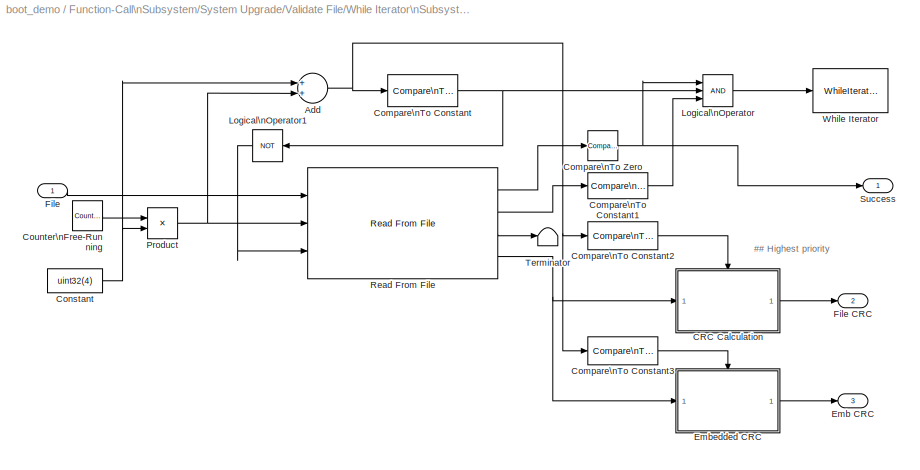
BLOCK [SubSystem] Function-Call\nSubsystem/System Upgrade/Validate File/While Iterator\nSubsystem
  FunctionWithSeparateData = off
  MaskHideContents = off
  MinAlgLoopOccurrences = off
  Opaque = off
  Ports = [1, 3]
  PropExecContextOutsideSubsystem = off
  RTWSystemCode = Auto
  RequestExecContextInheritance = off
  TreatAsAtomicUnit = on
BLOCK [Sum] Function-Call\nSubsystem/System Upgrade/Validate File/While Iterator\nSubsystem/Add
  InputSameDT = off
  OutDataType = fixdt(1, 16)
  OutDataTypeMode = Inherit via internal rule
  OutDataTypeStr = Inherit: Inherit via internal rule
  OutScaling = 2^-10
  Ports = [2, 1]
  SaturateOnIntegerOverflow = off
BLOCK [SubSystem] Function-Call\nSubsystem/System Upgrade/Validate File/While Iterator\nSubsystem/CRC Calculation
  FunctionWithSeparateData = off
  MaskHideContents = off
  MinAlgLoopOccurrences = off
  Opaque = off
  Ports = [1, 1, 1]
  PropExecContextOutsideSubsystem = off
  RTWSystemCode = Auto
  RequestExecContextInheritance = off
BLOCK [Reference] Function-Call\nSubsystem/System Upgrade/Validate File/While Iterator\nSubsystem/CRC Calculation/CRC Cumulative  REF=stm32f4_crc_lib/CRC Cumulative
  Ports = [1, 1]
  Priority = 0
  SourceBlock = stm32f4_crc_lib/CRC Cumulative
  SourceType = stm32f4_crc
  blockid = FunctionCallSubsystemSystemUpgradeValidateFileWhileIteratorSubsystemCRCCalculationCRCCumulative
  compat = 0
  conf = Cumulative
  confstr = [\"Param1\",\"Param1\"]
  inputarray = [7]
  inputlabelarray = {'uint32'}
  outputarray = [7]
  outputlabelarray = {'uint32'}
  sampletime = -1
  sampletimestr = -1
BLOCK [EnablePort] Function-Call\nSubsystem/System Upgrade/Validate File/While Iterator\nSubsystem/CRC Calculation/Enable
  Ports = []
BLOCK [Inport] Function-Call\nSubsystem/System Upgrade/Validate File/While Iterator\nSubsystem/CRC Calculation/In1
  IconDisplay = Port number
BLOCK [Outport] Function-Call\nSubsystem/System Upgrade/Validate File/While Iterator\nSubsystem/CRC Calculation/Out1
  IconDisplay = Port number
BLOCK [Reference] Function-Call\nSubsystem/System Upgrade/Validate File/While Iterator\nSubsystem/Compare\nTo Constant  REF=simulink/Logic and Bit\nOperations/Compare\nTo Constant
  FunctionWithSeparateData = off
  LogicOutDataTypeMode = uint8
  Ports = [1, 1]
  RTWMemSecDataConstants = Inherit from model
  RTWMemSecDataInternal = Inherit from model
  RTWMemSecDataParameters = Inherit from model
  RTWMemSecFuncExecute = Inherit from model
  RTWMemSecFuncInitTerm = Inherit from model
  ShowPortLabels = FromPortIcon
  SourceBlock = simulink/Logic and Bit\nOperations/Compare\nTo Constant
  SourceType = Compare To Constant
  SystemSampleTime = -1
  ZeroCross = off
  const = hex2dec('60000')
  relop = <
BLOCK [Reference] Function-Call\nSubsystem/System Upgrade/Validate File/While Iterator\nSubsystem/Compare\nTo Constant1  REF=simulink/Logic and Bit\nOperations/Compare\nTo Constant
  FunctionWithSeparateData = off
  LogicOutDataTypeMode = uint8
  Ports = [1, 1]
  RTWMemSecDataConstants = Inherit from model
  RTWMemSecDataInternal = Inherit from model
  RTWMemSecDataParameters = Inherit from model
  RTWMemSecFuncExecute = Inherit from model
  RTWMemSecFuncInitTerm = Inherit from model
  ShowPortLabels = FromPortIcon
  SourceBlock = simulink/Logic and Bit\nOperations/Compare\nTo Constant
  SourceType = Compare To Constant
  SystemSampleTime = -1
  ZeroCross = off
  const = hex2dec('60000')
  relop = ==
BLOCK [Reference] Function-Call\nSubsystem/System Upgrade/Validate File/While Iterator\nSubsystem/Compare\nTo Constant2  REF=simulink/Logic and Bit\nOperations/Compare\nTo Constant
  FunctionWithSeparateData = off
  LogicOutDataTypeMode = uint8
  Ports = [1, 1]
  RTWMemSecDataConstants = Inherit from model
  RTWMemSecDataInternal = Inherit from model
  RTWMemSecDataParameters = Inherit from model
  RTWMemSecFuncExecute = Inherit from model
  RTWMemSecFuncInitTerm = Inherit from model
  ShowPortLabels = FromPortIcon
  SourceBlock = simulink/Logic and Bit\nOperations/Compare\nTo Constant
  SourceType = Compare To Constant
  SystemSampleTime = -1
  ZeroCross = off
  const = hex2dec('60000')
  relop = <
BLOCK [Reference] Function-Call\nSubsystem/System Upgrade/Validate File/While Iterator\nSubsystem/Compare\nTo Constant3  REF=simulink/Logic and Bit\nOperations/Compare\nTo Constant
  FunctionWithSeparateData = off
  LogicOutDataTypeMode = uint8
  Ports = [1, 1]
  RTWMemSecDataConstants = Inherit from model
  RTWMemSecDataInternal = Inherit from model
  RTWMemSecDataParameters = Inherit from model
  RTWMemSecFuncExecute = Inherit from model
  RTWMemSecFuncInitTerm = Inherit from model
  ShowPortLabels = FromPortIcon
  SourceBlock = simulink/Logic and Bit\nOperations/Compare\nTo Constant
  SourceType = Compare To Constant
  SystemSampleTime = -1
  ZeroCross = off
  const = hex2dec('60000')-4
  relop = >=
BLOCK [Reference] Function-Call\nSubsystem/System Upgrade/Validate File/While Iterator\nSubsystem/Compare\nTo Zero  REF=simulink/Logic and Bit\nOperations/Compare\nTo Zero
  FunctionWithSeparateData = off
  LogicOutDataTypeMode = uint8
  Ports = [1, 1]
  RTWMemSecDataConstants = Inherit from model
  RTWMemSecDataInternal = Inherit from model
  RTWMemSecDataParameters = Inherit from model
  RTWMemSecFuncExecute = Inherit from model
  RTWMemSecFuncInitTerm = Inherit from model
  ShowPortLabels = FromPortIcon
  SourceBlock = simulink/Logic and Bit\nOperations/Compare\nTo Zero
  SourceType = Compare To Zero
  SystemSampleTime = -1
  ZeroCross = off
  relop = ==
BLOCK [Constant] Function-Call\nSubsystem/System Upgrade/Validate File/While Iterator\nSubsystem/Constant
  OutDataType = fixdt(1, 16)
  OutScaling = 2^0
  Value = uint32(4)
BLOCK [Reference] Function-Call\nSubsystem/System Upgrade/Validate File/While Iterator\nSubsystem/Counter\nFree-Running  REF=simulink/Sources/Counter\nFree-Running
  FunctionWithSeparateData = off
  NumBits = 32
  Ports = [0, 1]
  RTWMemSecDataConstants = Inherit from model
  RTWMemSecDataInternal = Inherit from model
  RTWMemSecDataParameters = Inherit from model
  RTWMemSecFuncExecute = Inherit from model
  RTWMemSecFuncInitTerm = Inherit from model
  ShowPortLabels = FromPortIcon
  SourceBlock = simulink/Sources/Counter\nFree-Running
  SourceType = Counter Free-Running
  SystemSampleTime = -1
  tsamp = -1
BLOCK [Outport] Function-Call\nSubsystem/System Upgrade/Validate File/While Iterator\nSubsystem/Emb CRC
  IconDisplay = Port number
  OutDataType = fixdt(1, 16)
  OutScaling = 2^0
  Port = 3
BLOCK [SubSystem] Function-Call\nSubsystem/System Upgrade/Validate File/While Iterator\nSubsystem/Embedded CRC
  FunctionWithSeparateData = off
  MaskHideContents = off
  MinAlgLoopOccurrences = off
  Opaque = off
  Ports = [1, 1, 1]
  PropExecContextOutsideSubsystem = off
  RTWSystemCode = Auto
  RequestExecContextInheritance = off
BLOCK [EnablePort] Function-Call\nSubsystem/System Upgrade/Validate File/While Iterator\nSubsystem/Embedded CRC/Enable
  Ports = []
BLOCK [Inport] Function-Call\nSubsystem/System Upgrade/Validate File/While Iterator\nSubsystem/Embedded CRC/In1
  IconDisplay = Port number
BLOCK [Outport] Function-Call\nSubsystem/System Upgrade/Validate File/While Iterator\nSubsystem/Embedded CRC/Out1
  IconDisplay = Port number
BLOCK [Inport] Function-Call\nSubsystem/System Upgrade/Validate File/While Iterator\nSubsystem/File
  IconDisplay = Port number
  OutDataType = fixdt(1, 16)
  OutScaling = 2^0
BLOCK [Outport] Function-Call\nSubsystem/System Upgrade/Validate File/While Iterator\nSubsystem/File CRC
  IconDisplay = Port number
  OutDataType = fixdt(1, 16)
  OutScaling = 2^0
  Port = 2
BLOCK [Logic] Function-Call\nSubsystem/System Upgrade/Validate File/While Iterator\nSubsystem/Logical\nOperator
  AllPortsSameDT = off
  Inputs = 3
  LogicDataType = fixdt(0, 8)
  OutDataTypeMode = boolean
  OutDataTypeStr = boolean
  Ports = [3, 1]
BLOCK [Logic] Function-Call\nSubsystem/System Upgrade/Validate File/While Iterator\nSubsystem/Logical\nOperator1
  AllPortsSameDT = off
  LogicDataType = fixdt(0, 8)
  Operator = NOT
  OutDataTypeMode = boolean
  OutDataTypeStr = boolean
  Ports = [1, 1]
BLOCK [Product] Function-Call\nSubsystem/System Upgrade/Validate File/While Iterator\nSubsystem/Product
  InputSameDT = off
  OutDataType = fixdt(1, 16)
  OutDataTypeMode = uint32
  OutDataTypeStr = uint32
  OutScaling = 2^0
  Ports = [2, 1]
  SaturateOnIntegerOverflow = off
BLOCK [Reference] Function-Call\nSubsystem/System Upgrade/Validate File/While Iterator\nSubsystem/Read From File  REF=waijung_filestream_lib/Read From File
  Ports = [3, 4]
  SourceBlock = waijung_filestream_lib/Read From File
  SourceType = waijung_filestream
  blockid = FunctionCallSubsystemSystemUpgradeValidateFileWhileIteratorSubsystemReadFromFile
  compat = 0
  conf = ReadFromFile
  datacount = 1
  datatype = uint32
  inikeylist = [\"Action\",\"File\"]
  inikeys = {'Action','File'}
  inisection = 'Boot'
  inputportlabel = {'FilePath','SeekPos','Close'}
  inputporttype = [-1 -1 -1]
  inputportwidth = [-1 1 1]
  maxstring = 32
  optionstring = [\"Boot\",\"32\"]
  outputportlabel = {'Status','TotalSize','CurrentPos','Data (uint32)'}
  outputporttype = [6 7 7 7]
  outputportwidth = [1 1 1 1]
  portpinstr = 0
  sampletime = inf
  valuetype = Pointer
BLOCK [Outport] Function-Call\nSubsystem/System Upgrade/Validate File/While Iterator\nSubsystem/Success
  IconDisplay = Port number
  OutDataType = fixdt(1, 16)
  OutScaling = 2^0
BLOCK [Terminator] Function-Call\nSubsystem/System Upgrade/Validate File/While Iterator\nSubsystem/Terminator
BLOCK [WhileIterator] Function-Call\nSubsystem/System Upgrade/Validate File/While Iterator\nSubsystem/While Iterator
  MaxIters = -1
  Ports = [1]
  Priority = 1
  WhileBlockType = do-while
BLOCK [SubSystem] Function-Call\nSubsystem/System Upgrade/Verify
  FunctionWithSeparateData = off
  MaskHideContents = off
  MinAlgLoopOccurrences = off
  Opaque = off
  Ports = [0, 1, 1]
  PropExecContextOutsideSubsystem = off
  RTWSystemCode = Auto
  RequestExecContextInheritance = off
  TreatAsAtomicUnit = on
BLOCK [Constant] Function-Call\nSubsystem/System Upgrade/Verify/CRC Location
  OutDataType = fixdt(1, 16)
  OutScaling = 2^0
  Value = uint32(hex2dec('20000')-4)
BLOCK [EnablePort] Function-Call\nSubsystem/System Upgrade/Verify/Enable
  Ports = []
BLOCK [Reference] Function-Call\nSubsystem/System Upgrade/Verify/Flash Read  REF=stm32f4_flash_lib/Flash Read
  Ports = [1, 1]
  SourceBlock = stm32f4_flash_lib/Flash Read
  SourceType = stm32f4_flash
  blockid = FunctionCallSubsystemSystemUpgradeVerifyFlashRead
  compat = 0
  conf = Read
  confstr = [\"uint32\",\"20000\",\"08060000\",\"7\",\"off\"]
  datacount = 1
  datatype = uint32
  enablestatus = off
  flashsector = Sector 7: 0x08060000 - 0x0807FFFF
  inputarray = [-1]
  inputlabelarray = {'Offset '}
  outputarray = [7]
  outputlabelarray = {'Data (uint32)'}
  sampletime = -1
  sampletimestr = -1
  transfer = Blocking
BLOCK [RelationalOperator] Function-Call\nSubsystem/System Upgrade/Verify/Relational\nOperator
  InputSameDT = off
  LogicDataType = fixdt(0, 8)
  LogicOutDataTypeMode = boolean
  Operator = ==
  OutDataTypeStr = boolean
BLOCK [Outport] Function-Call\nSubsystem/System Upgrade/Verify/Success
  IconDisplay = Port number
  OutDataType = fixdt(1, 16)
  OutScaling = 2^0
BLOCK [SubSystem] Function-Call\nSubsystem/System Upgrade/Verify/While Iterator\nSubsystem1
  FunctionWithSeparateData = off
  MaskHideContents = off
  MinAlgLoopOccurrences = off
  Opaque = off
  Ports = [0, 1]
  PropExecContextOutsideSubsystem = off
  RTWSystemCode = Auto
  RequestExecContextInheritance = off
  TreatAsAtomicUnit = on
BLOCK [Sum] Function-Call\nSubsystem/System Upgrade/Verify/While Iterator\nSubsystem1/Add
  InputSameDT = off
  OutDataType = fixdt(1, 16)
  OutDataTypeMode = Inherit via internal rule
  OutDataTypeStr = Inherit: Inherit via internal rule
  OutScaling = 2^-10
  Ports = [2, 1]
  SaturateOnIntegerOverflow = off
BLOCK [Reference] Function-Call\nSubsystem/System Upgrade/Verify/While Iterator\nSubsystem1/CRC Cumulative  REF=stm32f4_crc_lib/CRC Cumulative
  Ports = [1, 1]
  Priority = 0
  SourceBlock = stm32f4_crc_lib/CRC Cumulative
  SourceType = stm32f4_crc
  blockid = FunctionCallSubsystemSystemUpgradeVerifyWhileIteratorSubsystem1CRCCumulative
  compat = 0
  conf = Cumulative
  confstr = [\"Param1\",\"Param1\"]
  inputarray = [7]
  inputlabelarray = {'uint32'}
  outputarray = [7]
  outputlabelarray = {'uint32'}
  sampletime = -1
  sampletimestr = -1
BLOCK [Reference] Function-Call\nSubsystem/System Upgrade/Verify/While Iterator\nSubsystem1/Compare\nTo Constant  REF=simulink/Logic and Bit\nOperations/Compare\nTo Constant
  FunctionWithSeparateData = off
  LogicOutDataTypeMode = uint8
  Ports = [1, 1]
  RTWMemSecDataConstants = Inherit from model
  RTWMemSecDataInternal = Inherit from model
  RTWMemSecDataParameters = Inherit from model
  RTWMemSecFuncExecute = Inherit from model
  RTWMemSecFuncInitTerm = Inherit from model
  ShowPortLabels = FromPortIcon
  SourceBlock = simulink/Logic and Bit\nOperations/Compare\nTo Constant
  SourceType = Compare To Constant
  SystemSampleTime = -1
  ZeroCross = off
  const = hex2dec('60000')-4
  relop = <
BLOCK [Constant] Function-Call\nSubsystem/System Upgrade/Verify/While Iterator\nSubsystem1/Constant
  OutDataType = fixdt(1, 16)
  OutScaling = 2^0
  Value = uint32(4)
BLOCK [Reference] Function-Call\nSubsystem/System Upgrade/Verify/While Iterator\nSubsystem1/Counter\nFree-Running  REF=simulink/Sources/Counter\nFree-Running
  FunctionWithSeparateData = off
  NumBits = 32
  Ports = [0, 1]
  RTWMemSecDataConstants = Inherit from model
  RTWMemSecDataInternal = Inherit from model
  RTWMemSecDataParameters = Inherit from model
  RTWMemSecFuncExecute = Inherit from model
  RTWMemSecFuncInitTerm = Inherit from model
  ShowPortLabels = FromPortIcon
  SourceBlock = simulink/Sources/Counter\nFree-Running
  SourceType = Counter Free-Running
  SystemSampleTime = -1
  tsamp = -1
BLOCK [Product] Function-Call\nSubsystem/System Upgrade/Verify/While Iterator\nSubsystem1/Product
  InputSameDT = off
  OutDataType = fixdt(1, 16)
  OutDataTypeMode = uint32
  OutDataTypeStr = uint32
  OutScaling = 2^0
  Ports = [2, 1]
  SaturateOnIntegerOverflow = off
BLOCK [SubSystem] Function-Call\nSubsystem/System Upgrade/Verify/While Iterator\nSubsystem1/Read MCU Flash
  FunctionWithSeparateData = off
  MaskHideContents = off
  MinAlgLoopOccurrences = off
  Opaque = off
  Ports = [1, 1]
  PropExecContextOutsideSubsystem = off
  RTWSystemCode = Auto
  RequestExecContextInheritance = off
BLOCK [Reference] Function-Call\nSubsystem/System Upgrade/Verify/While Iterator\nSubsystem1/Read MCU Flash/Bitwise\nOperator  REF=simulink/Logic and Bit\nOperations/Bitwise\nOperator
  BitMask = 3
  BitMaskRealWorld = Stored Integer
  NumInputPorts = 1
  Ports = [1, 1]
  SourceBlock = simulink/Logic and Bit\nOperations/Bitwise\nOperator
  SourceType = Bitwise Operator
  UseBitMask = on
  logicop = AND
BLOCK [Reference] Function-Call\nSubsystem/System Upgrade/Verify/While Iterator\nSubsystem1/Read MCU Flash/Bitwise\nOperator1  REF=simulink/Logic and Bit\nOperations/Bitwise\nOperator
  BitMask = hex2dec('1FFFF')
  BitMaskRealWorld = Stored Integer
  NumInputPorts = 1
  Ports = [1, 1]
  SourceBlock = simulink/Logic and Bit\nOperations/Bitwise\nOperator
  SourceType = Bitwise Operator
  UseBitMask = on
  logicop = AND
BLOCK [Reference] Function-Call\nSubsystem/System Upgrade/Verify/While Iterator\nSubsystem1/Read MCU Flash/Compare\nTo Constant  REF=simulink/Logic and Bit\nOperations/Compare\nTo Constant
  FunctionWithSeparateData = off
  LogicOutDataTypeMode = uint8
  Ports = [1, 1]
  RTWMemSecDataConstants = Inherit from model
  RTWMemSecDataInternal = Inherit from model
  RTWMemSecDataParameters = Inherit from model
  RTWMemSecFuncExecute = Inherit from model
  RTWMemSecFuncInitTerm = Inherit from model
  ShowPortLabels = FromPortIcon
  SourceBlock = simulink/Logic and Bit\nOperations/Compare\nTo Constant
  SourceType = Compare To Constant
  SystemSampleTime = -1
  ZeroCross = off
  const = 0
  relop = ==
BLOCK [Reference] Function-Call\nSubsystem/System Upgrade/Verify/While Iterator\nSubsystem1/Read MCU Flash/Compare\nTo Constant1  REF=simulink/Logic and Bit\nOperations/Compare\nTo Constant
  FunctionWithSeparateData = off
  LogicOutDataTypeMode = uint8
  Ports = [1, 1]
  RTWMemSecDataConstants = Inherit from model
  RTWMemSecDataInternal = Inherit from model
  RTWMemSecDataParameters = Inherit from model
  RTWMemSecFuncExecute = Inherit from model
  RTWMemSecFuncInitTerm = Inherit from model
  ShowPortLabels = FromPortIcon
  SourceBlock = simulink/Logic and Bit\nOperations/Compare\nTo Constant
  SourceType = Compare To Constant
  SystemSampleTime = -1
  ZeroCross = off
  const = 1
  relop = ==
BLOCK [Reference] Function-Call\nSubsystem/System Upgrade/Verify/While Iterator\nSubsystem1/Read MCU Flash/Compare\nTo Constant2  REF=simulink/Logic and Bit\nOperations/Compare\nTo Constant
  FunctionWithSeparateData = off
  LogicOutDataTypeMode = uint8
  Ports = [1, 1]
  RTWMemSecDataConstants = Inherit from model
  RTWMemSecDataInternal = Inherit from model
  RTWMemSecDataParameters = Inherit from model
  RTWMemSecFuncExecute = Inherit from model
  RTWMemSecFuncInitTerm = Inherit from model
  ShowPortLabels = FromPortIcon
  SourceBlock = simulink/Logic and Bit\nOperations/Compare\nTo Constant
  SourceType = Compare To Constant
  SystemSampleTime = -1
  ZeroCross = off
  const = 2
  relop = ==
BLOCK [Outport] Function-Call\nSubsystem/System Upgrade/Verify/While Iterator\nSubsystem1/Read MCU Flash/Data
  IconDisplay = Port number
BLOCK [MultiPortSwitch] Function-Call\nSubsystem/System Upgrade/Verify/While Iterator\nSubsystem1/Read MCU Flash/Multiport\nSwitch
  InputSameDT = off
  Inputs = 4
  OutDataType = fixdt(1, 16)
  OutScaling = 2^0
  Ports = [5, 1]
  SaturateOnIntegerOverflow = off
  zeroidx = on
BLOCK [Inport] Function-Call\nSubsystem/System Upgrade/Verify/While Iterator\nSubsystem1/Read MCU Flash/Offset
  IconDisplay = Port number
BLOCK [SubSystem] Function-Call\nSubsystem/System Upgrade/Verify/While Iterator\nSubsystem1/Read MCU Flash/Sector 5
  FunctionWithSeparateData = off
  MaskHideContents = off
  MinAlgLoopOccurrences = off
  Opaque = off
  Ports = [1, 1, 1]
  PropExecContextOutsideSubsystem = off
  RTWSystemCode = Auto
  RequestExecContextInheritance = off
  TreatAsAtomicUnit = on
BLOCK [Outport] Function-Call\nSubsystem/System Upgrade/Verify/While Iterator\nSubsystem1/Read MCU Flash/Sector 5/Data
  IconDisplay = Port number
  OutDataType = fixdt(1, 16)
  OutScaling = 2^0
BLOCK [EnablePort] Function-Call\nSubsystem/System Upgrade/Verify/While Iterator\nSubsystem1/Read MCU Flash/Sector 5/Enable
  Ports = []
BLOCK [Reference] Function-Call\nSubsystem/System Upgrade/Verify/While Iterator\nSubsystem1/Read MCU Flash/Sector 5/Flash Read  REF=stm32f4_flash_lib/Flash Read
  Ports = [1, 1]
  SourceBlock = stm32f4_flash_lib/Flash Read
  SourceType = stm32f4_flash
  blockid = FunctionCallSubsystemSystemUpgradeVerifyWhileIteratorSubsystem1ReadMCUFlashSector5FlashRead
  compat = 0
  conf = Read
  confstr = [\"uint32\",\"20000\",\"08020000\",\"5\",\"on\"]
  datacount = 1
  datatype = uint32
  enablestatus = on
  flashsector = Sector 5: 0x08020000 - 0x0803FFFF
  inputarray = [-1]
  inputlabelarray = {'Offset '}
  outputarray = [7]
  outputlabelarray = {'Data (uint32)'}
  sampletime = -1
  sampletimestr = -1
  transfer = Blocking
BLOCK [Inport] Function-Call\nSubsystem/System Upgrade/Verify/While Iterator\nSubsystem1/Read MCU Flash/Sector 5/Offset
  IconDisplay = Port number
  OutDataType = fixdt(1, 16)
  OutScaling = 2^0
BLOCK [SubSystem] Function-Call\nSubsystem/System Upgrade/Verify/While Iterator\nSubsystem1/Read MCU Flash/Sector 6
  FunctionWithSeparateData = off
  MaskHideContents = off
  MinAlgLoopOccurrences = off
  Opaque = off
  Ports = [1, 1, 1]
  PropExecContextOutsideSubsystem = off
  RTWSystemCode = Auto
  RequestExecContextInheritance = off
  TreatAsAtomicUnit = on
BLOCK [Outport] Function-Call\nSubsystem/System Upgrade/Verify/While Iterator\nSubsystem1/Read MCU Flash/Sector 6/Data
  IconDisplay = Port number
  OutDataType = fixdt(1, 16)
  OutScaling = 2^0
BLOCK [EnablePort] Function-Call\nSubsystem/System Upgrade/Verify/While Iterator\nSubsystem1/Read MCU Flash/Sector 6/Enable
  Ports = []
BLOCK [Reference] Function-Call\nSubsystem/System Upgrade/Verify/While Iterator\nSubsystem1/Read MCU Flash/Sector 6/Flash Read  REF=stm32f4_flash_lib/Flash Read
  Ports = [1, 1]
  SourceBlock = stm32f4_flash_lib/Flash Read
  SourceType = stm32f4_flash
  blockid = FunctionCallSubsystemSystemUpgradeVerifyWhileIteratorSubsystem1ReadMCUFlashSector6FlashRead
  compat = 0
  conf = Read
  confstr = [\"uint32\",\"20000\",\"08040000\",\"6\",\"on\"]
  datacount = 1
  datatype = uint32
  enablestatus = on
  flashsector = Sector 6: 0x08040000 - 0x0805FFFF
  inputarray = [-1]
  inputlabelarray = {'Offset '}
  outputarray = [7]
  outputlabelarray = {'Data (uint32)'}
  sampletime = -1
  sampletimestr = -1
  transfer = Blocking
BLOCK [Inport] Function-Call\nSubsystem/System Upgrade/Verify/While Iterator\nSubsystem1/Read MCU Flash/Sector 6/Offset
  IconDisplay = Port number
  OutDataType = fixdt(1, 16)
  OutScaling = 2^0
BLOCK [SubSystem] Function-Call\nSubsystem/System Upgrade/Verify/While Iterator\nSubsystem1/Read MCU Flash/Sector 7
  FunctionWithSeparateData = off
  MaskHideContents = off
  MinAlgLoopOccurrences = off
  Opaque = off
  Ports = [1, 1, 1]
  PropExecContextOutsideSubsystem = off
  RTWSystemCode = Auto
  RequestExecContextInheritance = off
  TreatAsAtomicUnit = on
BLOCK [Outport] Function-Call\nSubsystem/System Upgrade/Verify/While Iterator\nSubsystem1/Read MCU Flash/Sector 7/Data
  IconDisplay = Port number
  OutDataType = fixdt(1, 16)
  OutScaling = 2^0
BLOCK [EnablePort] Function-Call\nSubsystem/System Upgrade/Verify/While Iterator\nSubsystem1/Read MCU Flash/Sector 7/Enable
  Ports = []
BLOCK [Reference] Function-Call\nSubsystem/System Upgrade/Verify/While Iterator\nSubsystem1/Read MCU Flash/Sector 7/Flash Read  REF=stm32f4_flash_lib/Flash Read
  Ports = [1, 1]
  SourceBlock = stm32f4_flash_lib/Flash Read
  SourceType = stm32f4_flash
  blockid = FunctionCallSubsystemSystemUpgradeVerifyWhileIteratorSubsystem1ReadMCUFlashSector7FlashRead
  compat = 0
  conf = Read
  confstr = [\"uint32\",\"20000\",\"08060000\",\"7\",\"on\"]
  datacount = 1
  datatype = uint32
  enablestatus = on
  flashsector = Sector 7: 0x08060000 - 0x0807FFFF
  inputarray = [-1]
  inputlabelarray = {'Offset '}
  outputarray = [7]
  outputlabelarray = {'Data (uint32)'}
  sampletime = -1
  sampletimestr = -1
  transfer = Blocking
BLOCK [Inport] Function-Call\nSubsystem/System Upgrade/Verify/While Iterator\nSubsystem1/Read MCU Flash/Sector 7/Offset
  IconDisplay = Port number
  OutDataType = fixdt(1, 16)
  OutScaling = 2^0
BLOCK [Reference] Function-Call\nSubsystem/System Upgrade/Verify/While Iterator\nSubsystem1/Read MCU Flash/Shift\nArithmetic  REF=simulink/Logic and Bit\nOperations/Shift\nArithmetic
  FunctionWithSeparateData = off
  Ports = [1, 1]
  RTWMemSecDataConstants = Inherit from model
  RTWMemSecDataInternal = Inherit from model
  RTWMemSecDataParameters = Inherit from model
  RTWMemSecFuncExecute = Inherit from model
  RTWMemSecFuncInitTerm = Inherit from model
  ShowPortLabels = FromPortIcon
  SourceBlock = simulink/Logic and Bit\nOperations/Shift\nArithmetic
  SourceType = Shift Arithmetic
  SystemSampleTime = -1
  nBinPtShiftRight = 0
  nBitShiftRight = 17
BLOCK [Outport] Function-Call\nSubsystem/System Upgrade/Verify/While Iterator\nSubsystem1/Sector CRC
  IconDisplay = Port number
  OutDataType = fixdt(1, 16)
  OutScaling = 2^0
BLOCK [WhileIterator] Function-Call\nSubsystem/System Upgrade/Verify/While Iterator\nSubsystem1/While Iterator
  MaxIters = -1
  Ports = [1]
  Priority = 1
  WhileBlockType = do-while
BLOCK [SubSystem] Function-Call\nSubsystem/Validate Main Program
  FunctionWithSeparateData = off
  MaskHideContents = off
  MinAlgLoopOccurrences = off
  Opaque = off
  Ports = [0, 0, 1]
  PropExecContextOutsideSubsystem = off
  RTWSystemCode = Auto
  RequestExecContextInheritance = off
BLOCK [Constant] Function-Call\nSubsystem/Validate Main Program/CRC Location
  OutDataType = fixdt(1, 16)
  OutScaling = 2^0
  Value = uint32(hex2dec('20000')-4)
BLOCK [EnablePort] Function-Call\nSubsystem/Validate Main Program/Enable
  Ports = []
BLOCK [Reference] Function-Call\nSubsystem/Validate Main Program/Flash Read  REF=stm32f4_flash_lib/Flash Read
  Ports = [1, 1]
  SourceBlock = stm32f4_flash_lib/Flash Read
  SourceType = stm32f4_flash
  blockid = FunctionCallSubsystemValidateMainProgramFlashRead
  compat = 0
  conf = Read
  confstr = [\"uint32\",\"20000\",\"08060000\",\"7\",\"off\"]
  datacount = 1
  datatype = uint32
  enablestatus = off
  flashsector = Sector 7: 0x08060000 - 0x0807FFFF
  inputarray = [-1]
  inputlabelarray = {'Offset '}
  outputarray = [7]
  outputlabelarray = {'Data (uint32)'}
  sampletime = -1
  sampletimestr = -1
  transfer = Blocking
BLOCK [SubSystem] Function-Call\nSubsystem/Validate Main Program/JumpToSectorB
  FunctionWithSeparateData = off
  MaskHideContents = off
  MinAlgLoopOccurrences = off
  Opaque = off
  Ports = [0, 0, 1]
  PropExecContextOutsideSubsystem = off
  RTWSystemCode = Auto
  RequestExecContextInheritance = off
  TreatAsAtomicUnit = on
BLOCK [Reference] Function-Call\nSubsystem/Validate Main Program/JumpToSectorB/Boot  REF=stm32f4_boot_lib/Jump Sector
  Ports = []
  SourceBlock = stm32f4_boot_lib/Jump Sector
  SourceType = stm32f4_boot
  blockid = FunctionCallSubsystemValidateMainProgramJumpToSectorBBoot
  compat = 0
  conf = Goto
  confstr = [\"08020000\",\"5\"]
  enableisr = off
  flashlength = 0x100000
  flashorigin = 0x8000000
  inputarray = []
  inputlabelarray = {}
  outputarray = []
  outputlabelarray = {}
  sampletime = inf
  sampletimestr = -1
  usersector = Sector 5: 0x08020000 - 0x0803FFFF
BLOCK [EnablePort] Function-Call\nSubsystem/Validate Main Program/JumpToSectorB/Enable
  Ports = []
BLOCK [RelationalOperator] Function-Call\nSubsystem/Validate Main Program/Relational\nOperator
  InputSameDT = off
  LogicDataType = fixdt(0, 8)
  LogicOutDataTypeMode = boolean
  Operator = ==
  OutDataTypeStr = boolean
BLOCK [SubSystem] Function-Call\nSubsystem/Validate Main Program/While Iterator\nSubsystem1
  FunctionWithSeparateData = off
  MaskHideContents = off
  MinAlgLoopOccurrences = off
  Opaque = off
  Ports = [0, 1]
  PropExecContextOutsideSubsystem = off
  RTWSystemCode = Auto
  RequestExecContextInheritance = off
  TreatAsAtomicUnit = on
BLOCK [Sum] Function-Call\nSubsystem/Validate Main Program/While Iterator\nSubsystem1/Add
  InputSameDT = off
  OutDataType = fixdt(1, 16)
  OutDataTypeMode = Inherit via internal rule
  OutDataTypeStr = Inherit: Inherit via internal rule
  OutScaling = 2^-10
  Ports = [2, 1]
  SaturateOnIntegerOverflow = off
BLOCK [Reference] Function-Call\nSubsystem/Validate Main Program/While Iterator\nSubsystem1/CRC Cumulative  REF=stm32f4_crc_lib/CRC Cumulative
  Ports = [1, 1]
  Priority = 0
  SourceBlock = stm32f4_crc_lib/CRC Cumulative
  SourceType = stm32f4_crc
  blockid = FunctionCallSubsystemValidateMainProgramWhileIteratorSubsystem1CRCCumulative
  compat = 0
  conf = Cumulative
  confstr = [\"Param1\",\"Param1\"]
  inputarray = [7]
  inputlabelarray = {'uint32'}
  outputarray = [7]
  outputlabelarray = {'uint32'}
  sampletime = -1
  sampletimestr = -1
BLOCK [Reference] Function-Call\nSubsystem/Validate Main Program/While Iterator\nSubsystem1/Compare\nTo Constant  REF=simulink/Logic and Bit\nOperations/Compare\nTo Constant
  FunctionWithSeparateData = off
  LogicOutDataTypeMode = uint8
  Ports = [1, 1]
  RTWMemSecDataConstants = Inherit from model
  RTWMemSecDataInternal = Inherit from model
  RTWMemSecDataParameters = Inherit from model
  RTWMemSecFuncExecute = Inherit from model
  RTWMemSecFuncInitTerm = Inherit from model
  ShowPortLabels = FromPortIcon
  SourceBlock = simulink/Logic and Bit\nOperations/Compare\nTo Constant
  SourceType = Compare To Constant
  SystemSampleTime = -1
  ZeroCross = off
  const = hex2dec('60000')-4
  relop = <
BLOCK [Constant] Function-Call\nSubsystem/Validate Main Program/While Iterator\nSubsystem1/Constant
  OutDataType = fixdt(1, 16)
  OutScaling = 2^0
  Value = uint32(4)
BLOCK [Reference] Function-Call\nSubsystem/Validate Main Program/While Iterator\nSubsystem1/Counter\nFree-Running  REF=simulink/Sources/Counter\nFree-Running
  FunctionWithSeparateData = off
  NumBits = 32
  Ports = [0, 1]
  RTWMemSecDataConstants = Inherit from model
  RTWMemSecDataInternal = Inherit from model
  RTWMemSecDataParameters = Inherit from model
  RTWMemSecFuncExecute = Inherit from model
  RTWMemSecFuncInitTerm = Inherit from model
  ShowPortLabels = FromPortIcon
  SourceBlock = simulink/Sources/Counter\nFree-Running
  SourceType = Counter Free-Running
  SystemSampleTime = -1
  tsamp = -1
BLOCK [Product] Function-Call\nSubsystem/Validate Main Program/While Iterator\nSubsystem1/Product
  InputSameDT = off
  OutDataType = fixdt(1, 16)
  OutDataTypeMode = uint32
  OutDataTypeStr = uint32
  OutScaling = 2^0
  Ports = [2, 1]
  SaturateOnIntegerOverflow = off
BLOCK [SubSystem] Function-Call\nSubsystem/Validate Main Program/While Iterator\nSubsystem1/Read MCU Flash1
  FunctionWithSeparateData = off
  MaskHideContents = off
  MinAlgLoopOccurrences = off
  Opaque = off
  Ports = [1, 1]
  PropExecContextOutsideSubsystem = off
  RTWSystemCode = Auto
  RequestExecContextInheritance = off
BLOCK [Reference] Function-Call\nSubsystem/Validate Main Program/While Iterator\nSubsystem1/Read MCU Flash1/Bitwise\nOperator  REF=simulink/Logic and Bit\nOperations/Bitwise\nOperator
  BitMask = 3
  BitMaskRealWorld = Stored Integer
  NumInputPorts = 1
  Ports = [1, 1]
  SourceBlock = simulink/Logic and Bit\nOperations/Bitwise\nOperator
  SourceType = Bitwise Operator
  UseBitMask = on
  logicop = AND
BLOCK [Reference] Function-Call\nSubsystem/Validate Main Program/While Iterator\nSubsystem1/Read MCU Flash1/Bitwise\nOperator1  REF=simulink/Logic and Bit\nOperations/Bitwise\nOperator
  BitMask = hex2dec('1FFFF')
  BitMaskRealWorld = Stored Integer
  NumInputPorts = 1
  Ports = [1, 1]
  SourceBlock = simulink/Logic and Bit\nOperations/Bitwise\nOperator
  SourceType = Bitwise Operator
  UseBitMask = on
  logicop = AND
BLOCK [Reference] Function-Call\nSubsystem/Validate Main Program/While Iterator\nSubsystem1/Read MCU Flash1/Compare\nTo Constant  REF=simulink/Logic and Bit\nOperations/Compare\nTo Constant
  FunctionWithSeparateData = off
  LogicOutDataTypeMode = uint8
  Ports = [1, 1]
  RTWMemSecDataConstants = Inherit from model
  RTWMemSecDataInternal = Inherit from model
  RTWMemSecDataParameters = Inherit from model
  RTWMemSecFuncExecute = Inherit from model
  RTWMemSecFuncInitTerm = Inherit from model
  ShowPortLabels = FromPortIcon
  SourceBlock = simulink/Logic and Bit\nOperations/Compare\nTo Constant
  SourceType = Compare To Constant
  SystemSampleTime = -1
  ZeroCross = off
  const = 0
  relop = ==
BLOCK [Reference] Function-Call\nSubsystem/Validate Main Program/While Iterator\nSubsystem1/Read MCU Flash1/Compare\nTo Constant1  REF=simulink/Logic and Bit\nOperations/Compare\nTo Constant
  FunctionWithSeparateData = off
  LogicOutDataTypeMode = uint8
  Ports = [1, 1]
  RTWMemSecDataConstants = Inherit from model
  RTWMemSecDataInternal = Inherit from model
  RTWMemSecDataParameters = Inherit from model
  RTWMemSecFuncExecute = Inherit from model
  RTWMemSecFuncInitTerm = Inherit from model
  ShowPortLabels = FromPortIcon
  SourceBlock = simulink/Logic and Bit\nOperations/Compare\nTo Constant
  SourceType = Compare To Constant
  SystemSampleTime = -1
  ZeroCross = off
  const = 1
  relop = ==
BLOCK [Reference] Function-Call\nSubsystem/Validate Main Program/While Iterator\nSubsystem1/Read MCU Flash1/Compare\nTo Constant2  REF=simulink/Logic and Bit\nOperations/Compare\nTo Constant
  FunctionWithSeparateData = off
  LogicOutDataTypeMode = uint8
  Ports = [1, 1]
  RTWMemSecDataConstants = Inherit from model
  RTWMemSecDataInternal = Inherit from model
  RTWMemSecDataParameters = Inherit from model
  RTWMemSecFuncExecute = Inherit from model
  RTWMemSecFuncInitTerm = Inherit from model
  ShowPortLabels = FromPortIcon
  SourceBlock = simulink/Logic and Bit\nOperations/Compare\nTo Constant
  SourceType = Compare To Constant
  SystemSampleTime = -1
  ZeroCross = off
  const = 2
  relop = ==
BLOCK [Outport] Function-Call\nSubsystem/Validate Main Program/While Iterator\nSubsystem1/Read MCU Flash1/Data
  IconDisplay = Port number
BLOCK [MultiPortSwitch] Function-Call\nSubsystem/Validate Main Program/While Iterator\nSubsystem1/Read MCU Flash1/Multiport\nSwitch
  InputSameDT = off
  Inputs = 4
  OutDataType = fixdt(1, 16)
  OutScaling = 2^0
  Ports = [5, 1]
  SaturateOnIntegerOverflow = off
  zeroidx = on
BLOCK [Inport] Function-Call\nSubsystem/Validate Main Program/While Iterator\nSubsystem1/Read MCU Flash1/Offset
  IconDisplay = Port number
BLOCK [SubSystem] Function-Call\nSubsystem/Validate Main Program/While Iterator\nSubsystem1/Read MCU Flash1/Sector 5
  FunctionWithSeparateData = off
  MaskHideContents = off
  MinAlgLoopOccurrences = off
  Opaque = off
  Ports = [1, 1, 1]
  PropExecContextOutsideSubsystem = off
  RTWSystemCode = Auto
  RequestExecContextInheritance = off
  TreatAsAtomicUnit = on
BLOCK [Outport] Function-Call\nSubsystem/Validate Main Program/While Iterator\nSubsystem1/Read MCU Flash1/Sector 5/Data
  IconDisplay = Port number
  OutDataType = fixdt(1, 16)
  OutScaling = 2^0
BLOCK [EnablePort] Function-Call\nSubsystem/Validate Main Program/While Iterator\nSubsystem1/Read MCU Flash1/Sector 5/Enable
  Ports = []
BLOCK [Reference] Function-Call\nSubsystem/Validate Main Program/While Iterator\nSubsystem1/Read MCU Flash1/Sector 5/Flash Read  REF=stm32f4_flash_lib/Flash Read
  Ports = [1, 1]
  SourceBlock = stm32f4_flash_lib/Flash Read
  SourceType = stm32f4_flash
  blockid = FunctionCallSubsystemValidateMainProgramWhileIteratorSubsystem1ReadMCUFlash1Sector5FlashRead
  compat = 0
  conf = Read
  confstr = [\"uint32\",\"20000\",\"08020000\",\"5\",\"on\"]
  datacount = 1
  datatype = uint32
  enablestatus = on
  flashsector = Sector 5: 0x08020000 - 0x0803FFFF
  inputarray = [-1]
  inputlabelarray = {'Offset '}
  outputarray = [7]
  outputlabelarray = {'Data (uint32)'}
  sampletime = -1
  sampletimestr = -1
  transfer = Blocking
BLOCK [Inport] Function-Call\nSubsystem/Validate Main Program/While Iterator\nSubsystem1/Read MCU Flash1/Sector 5/Offset
  IconDisplay = Port number
  OutDataType = fixdt(1, 16)
  OutScaling = 2^0
BLOCK [SubSystem] Function-Call\nSubsystem/Validate Main Program/While Iterator\nSubsystem1/Read MCU Flash1/Sector 6
  FunctionWithSeparateData = off
  MaskHideContents = off
  MinAlgLoopOccurrences = off
  Opaque = off
  Ports = [1, 1, 1]
  PropExecContextOutsideSubsystem = off
  RTWSystemCode = Auto
  RequestExecContextInheritance = off
  TreatAsAtomicUnit = on
BLOCK [Outport] Function-Call\nSubsystem/Validate Main Program/While Iterator\nSubsystem1/Read MCU Flash1/Sector 6/Data
  IconDisplay = Port number
  OutDataType = fixdt(1, 16)
  OutScaling = 2^0
BLOCK [EnablePort] Function-Call\nSubsystem/Validate Main Program/While Iterator\nSubsystem1/Read MCU Flash1/Sector 6/Enable
  Ports = []
BLOCK [Reference] Function-Call\nSubsystem/Validate Main Program/While Iterator\nSubsystem1/Read MCU Flash1/Sector 6/Flash Read  REF=stm32f4_flash_lib/Flash Read
  Ports = [1, 1]
  SourceBlock = stm32f4_flash_lib/Flash Read
  SourceType = stm32f4_flash
  blockid = FunctionCallSubsystemValidateMainProgramWhileIteratorSubsystem1ReadMCUFlash1Sector6FlashRead
  compat = 0
  conf = Read
  confstr = [\"uint32\",\"20000\",\"08040000\",\"6\",\"on\"]
  datacount = 1
  datatype = uint32
  enablestatus = on
  flashsector = Sector 6: 0x08040000 - 0x0805FFFF
  inputarray = [-1]
  inputlabelarray = {'Offset '}
  outputarray = [7]
  outputlabelarray = {'Data (uint32)'}
  sampletime = -1
  sampletimestr = -1
  transfer = Blocking
BLOCK [Inport] Function-Call\nSubsystem/Validate Main Program/While Iterator\nSubsystem1/Read MCU Flash1/Sector 6/Offset
  IconDisplay = Port number
  OutDataType = fixdt(1, 16)
  OutScaling = 2^0
BLOCK [SubSystem] Function-Call\nSubsystem/Validate Main Program/While Iterator\nSubsystem1/Read MCU Flash1/Sector 7
  FunctionWithSeparateData = off
  MaskHideContents = off
  MinAlgLoopOccurrences = off
  Opaque = off
  Ports = [1, 1, 1]
  PropExecContextOutsideSubsystem = off
  RTWSystemCode = Auto
  RequestExecContextInheritance = off
  TreatAsAtomicUnit = on
BLOCK [Outport] Function-Call\nSubsystem/Validate Main Program/While Iterator\nSubsystem1/Read MCU Flash1/Sector 7/Data
  IconDisplay = Port number
  OutDataType = fixdt(1, 16)
  OutScaling = 2^0
BLOCK [EnablePort] Function-Call\nSubsystem/Validate Main Program/While Iterator\nSubsystem1/Read MCU Flash1/Sector 7/Enable
  Ports = []
BLOCK [Reference] Function-Call\nSubsystem/Validate Main Program/While Iterator\nSubsystem1/Read MCU Flash1/Sector 7/Flash Read  REF=stm32f4_flash_lib/Flash Read
  Ports = [1, 1]
  SourceBlock = stm32f4_flash_lib/Flash Read
  SourceType = stm32f4_flash
  blockid = FunctionCallSubsystemValidateMainProgramWhileIteratorSubsystem1ReadMCUFlash1Sector7FlashRead
  compat = 0
  conf = Read
  confstr = [\"uint32\",\"20000\",\"08060000\",\"7\",\"on\"]
  datacount = 1
  datatype = uint32
  enablestatus = on
  flashsector = Sector 7: 0x08060000 - 0x0807FFFF
  inputarray = [-1]
  inputlabelarray = {'Offset '}
  outputarray = [7]
  outputlabelarray = {'Data (uint32)'}
  sampletime = -1
  sampletimestr = -1
  transfer = Blocking
BLOCK [Inport] Function-Call\nSubsystem/Validate Main Program/While Iterator\nSubsystem1/Read MCU Flash1/Sector 7/Offset
  IconDisplay = Port number
  OutDataType = fixdt(1, 16)
  OutScaling = 2^0
BLOCK [Reference] Function-Call\nSubsystem/Validate Main Program/While Iterator\nSubsystem1/Read MCU Flash1/Shift\nArithmetic  REF=simulink/Logic and Bit\nOperations/Shift\nArithmetic
  FunctionWithSeparateData = off
  Ports = [1, 1]
  RTWMemSecDataConstants = Inherit from model
  RTWMemSecDataInternal = Inherit from model
  RTWMemSecDataParameters = Inherit from model
  RTWMemSecFuncExecute = Inherit from model
  RTWMemSecFuncInitTerm = Inherit from model
  ShowPortLabels = FromPortIcon
  SourceBlock = simulink/Logic and Bit\nOperations/Shift\nArithmetic
  SourceType = Shift Arithmetic
  SystemSampleTime = -1
  nBinPtShiftRight = 0
  nBitShiftRight = 17
BLOCK [Outport] Function-Call\nSubsystem/Validate Main Program/While Iterator\nSubsystem1/Sector CRC
  IconDisplay = Port number
  OutDataType = fixdt(1, 16)
  OutScaling = 2^0
BLOCK [WhileIterator] Function-Call\nSubsystem/Validate Main Program/While Iterator\nSubsystem1/While Iterator
  MaxIters = -1
  Ports = [1]
  Priority = 1
  WhileBlockType = do-while
BLOCK [TriggerPort] Function-Call\nSubsystem/function
  Ports = []
  StatesWhenEnabling = held
  TriggerType = function-call
BLOCK [Reference] Target Setup  REF=stm32f4_device_config_lib/Target Setup
  Ports = []
  Priority = 100
  SourceBlock = stm32f4_device_config_lib/Target Setup
  SourceType = stm32f4_target_setup
  assemblercontrolstr = $(patsubst %, -I%, .) -mcpu=cortex-m4 -mthumb -mthumb-interwork -mfloat-abi=hard -mfpu=fpv4-sp-d16 -ffast-math -Wall -Wextra -Ofast -Wa,-amhls=$(<:.s=.lst) -D__STACK_SIZE=$(STACK_SIZE) -D__HEAP_SIZE=$(HEAP_SIZE)
  blockid = TargetSetup
  clockconfig = HSEOSC-8MHz
  compiler = GNU ARM
  compilercontrolstr = $(patsubst %, -I%, .) -mcpu=cortex-m4 -mthumb -mthumb-interwork -mfloat-abi=hard -mfpu=fpv4-sp-d16 -ffast-math -Wall -Wextra -Ofast
  editctrlstr = on
  enableautocompiledownload = on
  execprofile = None
  flashlength = 1024k
  flashorigin = 0x8000000
  fullchiperase = on
  hclk = 168000000
  heapsize = 0x2000
  hseval = 8000000
  lastprofileruart = 3
  linkercontrolstr = -T$(LD_SCRIPT) -g -Wl,-Map=$(MAP),--cref,--no-warn-mismatch -mcpu=cortex-m4 -mthumb -mthumb-interwork -mfloat-abi=hard -mfpu=fpv4-sp-d16 -specs=nosys.specs
  manualsetsampletime = off
  mcu = STM32F417IG (LQFP176)
  mcustr = STM32F417IG
  previous_compiler = GNU ARM
  profilerbaud = 500000
  profilerinitstr = 0.01,168000000,1680000,500000,0
  profilertxpin = D8
  profileruart = 3
  programmerinterface = ST-Link
  ramlength = 128k
  ramorigin = 0x20000000
  runafterdownload = on
  sampletime = 0.01
  showmemoryconfiguration = off
  stacksize = 0x2000
  system_stm32f4xx_c_path = <path>
  systickreloadvalue = 1680000
  useextram = off
ANNOTATION Function-Call\nSubsystem/System Upgrade/Validate File/While Iterator\nSubsystem: ## Highest priority
ANNOTATION Function-Call\nSubsystem/System Upgrade/Verify/While Iterator\nSubsystem1: ## Highest priority
ANNOTATION Function-Call\nSubsystem/Validate Main Program/While Iterator\nSubsystem1: ## Highest priority
LINE Bitwise\nOperator:1 -> Digital Output:1
LINE Boot:1 -> Function-Call\nSubsystem:trigger
LINE Counter\nFree-Running:1 -> Bitwise\nOperator:1
LINE Function-Call\nSubsystem/Load system//conf.ini/Compare\nTo Zero:1 -> Function-Call\nSubsystem/Load system//conf.ini/Logical\nOperator:1
LINE Function-Call\nSubsystem/Load system//conf.ini/Constant:1 -> Function-Call\nSubsystem/Load system//conf.ini/Read INI File:1
LINE Function-Call\nSubsystem/Load system//conf.ini/Enable-1/Bitwise\nOperator:1 -> Function-Call\nSubsystem/Load system//conf.ini/Enable-1/Sum of\nElements:1
LINE Function-Call\nSubsystem/Load system//conf.ini/Enable-1/Compare\nTo Zero:1 -> Function-Call\nSubsystem/Load system//conf.ini/Enable-1/Valid:1
LINE Function-Call\nSubsystem/Load system//conf.ini/Enable-1/Constant1:1 -> Function-Call\nSubsystem/Load system//conf.ini/Enable-1/Bitwise\nOperator:2
LINE Function-Call\nSubsystem/Load system//conf.ini/Enable-1/Demux:1 -> Function-Call\nSubsystem/Load system//conf.ini/Enable-1/Bitwise\nOperator:1
LINE Function-Call\nSubsystem/Load system//conf.ini/Enable-1/Demux:2 -> Function-Call\nSubsystem/Load system//conf.ini/Enable-1/Terminator:1
LINE Function-Call\nSubsystem/Load system//conf.ini/Enable-1/In1:1 -> Function-Call\nSubsystem/Load system//conf.ini/Enable-1/Demux:1
LINE Function-Call\nSubsystem/Load system//conf.ini/Enable-1/Sum of\nElements:1 -> Function-Call\nSubsystem/Load system//conf.ini/Enable-1/Compare\nTo Zero:1
LINE Function-Call\nSubsystem/Load system//conf.ini/Enable-1:1 -> Function-Call\nSubsystem/Load system//conf.ini/Logical\nOperator:2
LINE Function-Call\nSubsystem/Load system//conf.ini/Logical\nOperator:1 -> Function-Call\nSubsystem/Load system//conf.ini/Upgrade Enable:1
LINE Function-Call\nSubsystem/Load system//conf.ini/Read INI File:1 -> Function-Call\nSubsystem/Load system//conf.ini/Compare\nTo Zero:1
LINE Function-Call\nSubsystem/Load system//conf.ini/Read INI File:2 -> Function-Call\nSubsystem/Load system//conf.ini/Enable-1:1
LINE Function-Call\nSubsystem/Load system//conf.ini/Read INI File:3 -> Function-Call\nSubsystem/Load system//conf.ini/File:1
LINE Function-Call\nSubsystem/Load system//conf.ini/Read INI File:4 -> Function-Call\nSubsystem/Load system//conf.ini/Target-main:1
LINE Function-Call\nSubsystem/Load system//conf.ini/Target-main/Bitwise\nOperator:1 -> Function-Call\nSubsystem/Load system//conf.ini/Target-main/Sum of\nElements:1
LINE Function-Call\nSubsystem/Load system//conf.ini/Target-main/Compare\nTo Zero:1 -> Function-Call\nSubsystem/Load system//conf.ini/Target-main/Valid:1
LINE Function-Call\nSubsystem/Load system//conf.ini/Target-main/Constant1:1 -> Function-Call\nSubsystem/Load system//conf.ini/Target-main/Bitwise\nOperator:2
LINE Function-Call\nSubsystem/Load system//conf.ini/Target-main/Demux:1 -> Function-Call\nSubsystem/Load system//conf.ini/Target-main/Bitwise\nOperator:1
LINE Function-Call\nSubsystem/Load system//conf.ini/Target-main/Demux:2 -> Function-Call\nSubsystem/Load system//conf.ini/Target-main/Terminator:1
LINE Function-Call\nSubsystem/Load system//conf.ini/Target-main/In1:1 -> Function-Call\nSubsystem/Load system//conf.ini/Target-main/Demux:1
LINE Function-Call\nSubsystem/Load system//conf.ini/Target-main/Sum of\nElements:1 -> Function-Call\nSubsystem/Load system//conf.ini/Target-main/Compare\nTo Zero:1
LINE Function-Call\nSubsystem/Load system//conf.ini/Target-main:1 -> Function-Call\nSubsystem/Load system//conf.ini/Logical\nOperator:3
NET Function-Call\nSubsystem/Load system//conf.ini:1 -> Function-Call\nSubsystem/Logical\nOperator1:1, Function-Call\nSubsystem/System Upgrade:enable
LINE Function-Call\nSubsystem/Load system//conf.ini:2 -> Function-Call\nSubsystem/System Upgrade:1
LINE Function-Call\nSubsystem/Logical\nOperator1:1 -> Function-Call\nSubsystem/Validate Main Program:enable
LINE Function-Call\nSubsystem/System Upgrade/Add:1 -> Function-Call\nSubsystem/System Upgrade/Clear system//conf.ini:1
LINE Function-Call\nSubsystem/System Upgrade/Clear system//conf.ini/Compare\nTo Zero:1 -> Function-Call\nSubsystem/System Upgrade/Clear system//conf.ini/System Reset:enable
LINE Function-Call\nSubsystem/System Upgrade/Clear system//conf.ini/Constant1:1 -> Function-Call\nSubsystem/System Upgrade/Clear system//conf.ini/Create INI File:1
LINE Function-Call\nSubsystem/System Upgrade/Clear system//conf.ini/Constant2:1 -> Function-Call\nSubsystem/System Upgrade/Clear system//conf.ini/Create INI File:5
LINE Function-Call\nSubsystem/System Upgrade/Clear system//conf.ini/Constant3:1 -> Function-Call\nSubsystem/System Upgrade/Clear system//conf.ini/Create INI File:3
LINE Function-Call\nSubsystem/System Upgrade/Clear system//conf.ini/Constant5:1 -> Function-Call\nSubsystem/System Upgrade/Clear system//conf.ini/Create INI File:2
LINE Function-Call\nSubsystem/System Upgrade/Clear system//conf.ini/Create INI File:1 -> Function-Call\nSubsystem/System Upgrade/Clear system//conf.ini/Compare\nTo Zero:1
LINE Function-Call\nSubsystem/System Upgrade/Clear system//conf.ini/File:1 -> Function-Call\nSubsystem/System Upgrade/Clear system//conf.ini/Create INI File:4
LINE Function-Call\nSubsystem/System Upgrade/Clear system//conf.ini/Invalid File:1 -> Function-Call\nSubsystem/System Upgrade/Clear system//conf.ini/Multiport\nSwitch:2
LINE Function-Call\nSubsystem/System Upgrade/Clear system//conf.ini/Multiport\nSwitch:1 -> Function-Call\nSubsystem/System Upgrade/Clear system//conf.ini/Create INI File:6
LINE Function-Call\nSubsystem/System Upgrade/Clear system//conf.ini/Success State:1 -> Function-Call\nSubsystem/System Upgrade/Clear system//conf.ini/Multiport\nSwitch:1
LINE Function-Call\nSubsystem/System Upgrade/Clear system//conf.ini/Success:1 -> Function-Call\nSubsystem/System Upgrade/Clear system//conf.ini/Multiport\nSwitch:5
LINE Function-Call\nSubsystem/System Upgrade/Clear system//conf.ini/Upgrade Fail:1 -> Function-Call\nSubsystem/System Upgrade/Clear system//conf.ini/Multiport\nSwitch:3
LINE Function-Call\nSubsystem/System Upgrade/Clear system//conf.ini/Verify Fail:1 -> Function-Call\nSubsystem/System Upgrade/Clear system//conf.ini/Multiport\nSwitch:4
NET Function-Call\nSubsystem/System Upgrade/File:1 -> Function-Call\nSubsystem/System Upgrade/Clear system//conf.ini:2, Function-Call\nSubsystem/System Upgrade/Upgrade:1, Function-Call\nSubsystem/System Upgrade/Validate File:1
LINE Function-Call\nSubsystem/System Upgrade/Upgrade/Copy New Program/File:1 -> Function-Call\nSubsystem/System Upgrade/Upgrade/Copy New Program/Read File-Write Flash:1
LINE Function-Call\nSubsystem/System Upgrade/Upgrade/Copy New Program/Read File-Write Flash/Add:1 -> Function-Call\nSubsystem/System Upgrade/Upgrade/Copy New Program/Read File-Write Flash/Compare\nTo Constant1:1
NET Function-Call\nSubsystem/System Upgrade/Upgrade/Copy New Program/Read File-Write Flash/Compare\nTo Constant1:1 -> Function-Call\nSubsystem/System Upgrade/Upgrade/Copy New Program/Read File-Write Flash/Logical\nOperator1:1, Function-Call\nSubsystem/System Upgrade/Upgrade/Copy New Program/Read File-Write Flash/Logical\nOperator:1
NET Function-Call\nSubsystem/System Upgrade/Upgrade/Copy New Program/Read File-Write Flash/Compare\nTo Zero1:1 -> Function-Call\nSubsystem/System Upgrade/Upgrade/Copy New Program/Read File-Write Flash/Logical\nOperator1:2, Function-Call\nSubsystem/System Upgrade/Upgrade/Copy New Program/Read File-Write Flash/Logical\nOperator2:1
NET Function-Call\nSubsystem/System Upgrade/Upgrade/Copy New Program/Read File-Write Flash/Constant:1 -> Function-Call\nSubsystem/System Upgrade/Upgrade/Copy New Program/Read File-Write Flash/Add:1, Function-Call\nSubsystem/System Upgrade/Upgrade/Copy New Program/Read File-Write Flash/Product:2
LINE Function-Call\nSubsystem/System Upgrade/Upgrade/Copy New Program/Read File-Write Flash/Counter\nFree-Running1:1 -> Function-Call\nSubsystem/System Upgrade/Upgrade/Copy New Program/Read File-Write Flash/Product:1
LINE Function-Call\nSubsystem/System Upgrade/Upgrade/Copy New Program/Read File-Write Flash/File:1 -> Function-Call\nSubsystem/System Upgrade/Upgrade/Copy New Program/Read File-Write Flash/Read From File:1
LINE Function-Call\nSubsystem/System Upgrade/Upgrade/Copy New Program/Read File-Write Flash/Logical\nOperator1:1 -> Function-Call\nSubsystem/System Upgrade/Upgrade/Copy New Program/Read File-Write Flash/While Iterator:1
LINE Function-Call\nSubsystem/System Upgrade/Upgrade/Copy New Program/Read File-Write Flash/Logical\nOperator2:1 -> Function-Call\nSubsystem/System Upgrade/Upgrade/Copy New Program/Read File-Write Flash/Success:1
LINE Function-Call\nSubsystem/System Upgrade/Upgrade/Copy New Program/Read File-Write Flash/Logical\nOperator:1 -> Function-Call\nSubsystem/System Upgrade/Upgrade/Copy New Program/Read File-Write Flash/Read From File:3
NET Function-Call\nSubsystem/System Upgrade/Upgrade/Copy New Program/Read File-Write Flash/Product:1 -> Function-Call\nSubsystem/System Upgrade/Upgrade/Copy New Program/Read File-Write Flash/Add:2, Function-Call\nSubsystem/System Upgrade/Upgrade/Copy New Program/Read File-Write Flash/Read From File:2, Function-Call\nSubsystem/System Upgrade/Upgrade/Copy New Program/Read File-Write Flash/Write MCU Flash:2
LINE Function-Call\nSubsystem/System Upgrade/Upgrade/Copy New Program/Read File-Write Flash/Read From File:1 -> Function-Call\nSubsystem/System Upgrade/Upgrade/Copy New Program/Read File-Write Flash/Compare\nTo Zero1:1
LINE Function-Call\nSubsystem/System Upgrade/Upgrade/Copy New Program/Read File-Write Flash/Read From File:2 -> Function-Call\nSubsystem/System Upgrade/Upgrade/Copy New Program/Read File-Write Flash/Terminator:1
LINE Function-Call\nSubsystem/System Upgrade/Upgrade/Copy New Program/Read File-Write Flash/Read From File:3 -> Function-Call\nSubsystem/System Upgrade/Upgrade/Copy New Program/Read File-Write Flash/Terminator1:1
LINE Function-Call\nSubsystem/System Upgrade/Upgrade/Copy New Program/Read File-Write Flash/Read From File:4 -> Function-Call\nSubsystem/System Upgrade/Upgrade/Copy New Program/Read File-Write Flash/Write MCU Flash:1
NET Function-Call\nSubsystem/System Upgrade/Upgrade/Copy New Program/Read File-Write Flash/Write MCU Flash/Bitwise\nOperator1:1 -> Function-Call\nSubsystem/System Upgrade/Upgrade/Copy New Program/Read File-Write Flash/Write MCU Flash/Compare\nTo Constant1:1, Function-Call\nSubsystem/System Upgrade/Upgrade/Copy New Program/Read File-Write Flash/Write MCU Flash/Compare\nTo Constant2:1, Function-Call\nSubsystem/System Upgrade/Upgrade/Copy New Program/Read File-Write Flash/Write MCU Flash/Compare\nTo Constant:1, Function-Call\nSubsystem/System Upgrade/Upgrade/Copy New Program/Read File-Write Flash/Write MCU Flash/Multiport\nSwitch:1
NET Function-Call\nSubsystem/System Upgrade/Upgrade/Copy New Program/Read File-Write Flash/Write MCU Flash/Bitwise\nOperator2:1 -> Function-Call\nSubsystem/System Upgrade/Upgrade/Copy New Program/Read File-Write Flash/Write MCU Flash/Sector 5:1, Function-Call\nSubsystem/System Upgrade/Upgrade/Copy New Program/Read File-Write Flash/Write MCU Flash/Sector 6:1, Function-Call\nSubsystem/System Upgrade/Upgrade/Copy New Program/Read File-Write Flash/Write MCU Flash/Sector 7:1
LINE Function-Call\nSubsystem/System Upgrade/Upgrade/Copy New Program/Read File-Write Flash/Write MCU Flash/Compare\nTo Constant1:1 -> Function-Call\nSubsystem/System Upgrade/Upgrade/Copy New Program/Read File-Write Flash/Write MCU Flash/Sector 6:enable
LINE Function-Call\nSubsystem/System Upgrade/Upgrade/Copy New Program/Read File-Write Flash/Write MCU Flash/Compare\nTo Constant2:1 -> Function-Call\nSubsystem/System Upgrade/Upgrade/Copy New Program/Read File-Write Flash/Write MCU Flash/Sector 7:enable
LINE Function-Call\nSubsystem/System Upgrade/Upgrade/Copy New Program/Read File-Write Flash/Write MCU Flash/Compare\nTo Constant:1 -> Function-Call\nSubsystem/System Upgrade/Upgrade/Copy New Program/Read File-Write Flash/Write MCU Flash/Sector 5:enable
LINE Function-Call\nSubsystem/System Upgrade/Upgrade/Copy New Program/Read File-Write Flash/Write MCU Flash/Compare\nTo Zero3:1 -> Function-Call\nSubsystem/System Upgrade/Upgrade/Copy New Program/Read File-Write Flash/Write MCU Flash/Success:1
LINE Function-Call\nSubsystem/System Upgrade/Upgrade/Copy New Program/Read File-Write Flash/Write MCU Flash/Constant:1 -> Function-Call\nSubsystem/System Upgrade/Upgrade/Copy New Program/Read File-Write Flash/Write MCU Flash/Multiport\nSwitch:5
NET Function-Call\nSubsystem/System Upgrade/Upgrade/Copy New Program/Read File-Write Flash/Write MCU Flash/Data:1 -> Function-Call\nSubsystem/System Upgrade/Upgrade/Copy New Program/Read File-Write Flash/Write MCU Flash/Sector 5:2, Function-Call\nSubsystem/System Upgrade/Upgrade/Copy New Program/Read File-Write Flash/Write MCU Flash/Sector 6:2, Function-Call\nSubsystem/System Upgrade/Upgrade/Copy New Program/Read File-Write Flash/Write MCU Flash/Sector 7:2
LINE Function-Call\nSubsystem/System Upgrade/Upgrade/Copy New Program/Read File-Write Flash/Write MCU Flash/Multiport\nSwitch:1 -> Function-Call\nSubsystem/System Upgrade/Upgrade/Copy New Program/Read File-Write Flash/Write MCU Flash/Compare\nTo Zero3:1
NET Function-Call\nSubsystem/System Upgrade/Upgrade/Copy New Program/Read File-Write Flash/Write MCU Flash/Offset:1 -> Function-Call\nSubsystem/System Upgrade/Upgrade/Copy New Program/Read File-Write Flash/Write MCU Flash/Bitwise\nOperator2:1, Function-Call\nSubsystem/System Upgrade/Upgrade/Copy New Program/Read File-Write Flash/Write MCU Flash/Shift\nArithmetic:1
LINE Function-Call\nSubsystem/System Upgrade/Upgrade/Copy New Program/Read File-Write Flash/Write MCU Flash/Sector 5/Data:1 -> Function-Call\nSubsystem/System Upgrade/Upgrade/Copy New Program/Read File-Write Flash/Write MCU Flash/Sector 5/Flash Write1:2
LINE Function-Call\nSubsystem/System Upgrade/Upgrade/Copy New Program/Read File-Write Flash/Write MCU Flash/Sector 5/Flash Write1:1 -> Function-Call\nSubsystem/System Upgrade/Upgrade/Copy New Program/Read File-Write Flash/Write MCU Flash/Sector 5/Ready:1
LINE Function-Call\nSubsystem/System Upgrade/Upgrade/Copy New Program/Read File-Write Flash/Write MCU Flash/Sector 5/Offset:1 -> Function-Call\nSubsystem/System Upgrade/Upgrade/Copy New Program/Read File-Write Flash/Write MCU Flash/Sector 5/Flash Write1:1
LINE Function-Call\nSubsystem/System Upgrade/Upgrade/Copy New Program/Read File-Write Flash/Write MCU Flash/Sector 5:1 -> Function-Call\nSubsystem/System Upgrade/Upgrade/Copy New Program/Read File-Write Flash/Write MCU Flash/Multiport\nSwitch:2
LINE Function-Call\nSubsystem/System Upgrade/Upgrade/Copy New Program/Read File-Write Flash/Write MCU Flash/Sector 6/Data:1 -> Function-Call\nSubsystem/System Upgrade/Upgrade/Copy New Program/Read File-Write Flash/Write MCU Flash/Sector 6/Flash Write1:2
LINE Function-Call\nSubsystem/System Upgrade/Upgrade/Copy New Program/Read File-Write Flash/Write MCU Flash/Sector 6/Flash Write1:1 -> Function-Call\nSubsystem/System Upgrade/Upgrade/Copy New Program/Read File-Write Flash/Write MCU Flash/Sector 6/Status:1
LINE Function-Call\nSubsystem/System Upgrade/Upgrade/Copy New Program/Read File-Write Flash/Write MCU Flash/Sector 6/Offset:1 -> Function-Call\nSubsystem/System Upgrade/Upgrade/Copy New Program/Read File-Write Flash/Write MCU Flash/Sector 6/Flash Write1:1
LINE Function-Call\nSubsystem/System Upgrade/Upgrade/Copy New Program/Read File-Write Flash/Write MCU Flash/Sector 6:1 -> Function-Call\nSubsystem/System Upgrade/Upgrade/Copy New Program/Read File-Write Flash/Write MCU Flash/Multiport\nSwitch:3
LINE Function-Call\nSubsystem/System Upgrade/Upgrade/Copy New Program/Read File-Write Flash/Write MCU Flash/Sector 7/Data:1 -> Function-Call\nSubsystem/System Upgrade/Upgrade/Copy New Program/Read File-Write Flash/Write MCU Flash/Sector 7/Flash Write1:2
LINE Function-Call\nSubsystem/System Upgrade/Upgrade/Copy New Program/Read File-Write Flash/Write MCU Flash/Sector 7/Flash Write1:1 -> Function-Call\nSubsystem/System Upgrade/Upgrade/Copy New Program/Read File-Write Flash/Write MCU Flash/Sector 7/Status:1
LINE Function-Call\nSubsystem/System Upgrade/Upgrade/Copy New Program/Read File-Write Flash/Write MCU Flash/Sector 7/Offset:1 -> Function-Call\nSubsystem/System Upgrade/Upgrade/Copy New Program/Read File-Write Flash/Write MCU Flash/Sector 7/Flash Write1:1
LINE Function-Call\nSubsystem/System Upgrade/Upgrade/Copy New Program/Read File-Write Flash/Write MCU Flash/Sector 7:1 -> Function-Call\nSubsystem/System Upgrade/Upgrade/Copy New Program/Read File-Write Flash/Write MCU Flash/Multiport\nSwitch:4
LINE Function-Call\nSubsystem/System Upgrade/Upgrade/Copy New Program/Read File-Write Flash/Write MCU Flash/Shift\nArithmetic:1 -> Function-Call\nSubsystem/System Upgrade/Upgrade/Copy New Program/Read File-Write Flash/Write MCU Flash/Bitwise\nOperator1:1
NET Function-Call\nSubsystem/System Upgrade/Upgrade/Copy New Program/Read File-Write Flash/Write MCU Flash:1 -> Function-Call\nSubsystem/System Upgrade/Upgrade/Copy New Program/Read File-Write Flash/Logical\nOperator1:3, Function-Call\nSubsystem/System Upgrade/Upgrade/Copy New Program/Read File-Write Flash/Logical\nOperator2:2
LINE Function-Call\nSubsystem/System Upgrade/Upgrade/Copy New Program/Read File-Write Flash:1 -> Function-Call\nSubsystem/System Upgrade/Upgrade/Copy New Program/Success:1
LINE Function-Call\nSubsystem/System Upgrade/Upgrade/Copy New Program:1 -> Function-Call\nSubsystem/System Upgrade/Upgrade/Success:1
LINE Function-Call\nSubsystem/System Upgrade/Upgrade/Erase Main Program Sector/Compare\nTo Zero1:1 -> Function-Call\nSubsystem/System Upgrade/Upgrade/Erase Main Program Sector/Logical\nOperator:2
LINE Function-Call\nSubsystem/System Upgrade/Upgrade/Erase Main Program Sector/Compare\nTo Zero2:1 -> Function-Call\nSubsystem/System Upgrade/Upgrade/Erase Main Program Sector/Logical\nOperator:3
LINE Function-Call\nSubsystem/System Upgrade/Upgrade/Erase Main Program Sector/Compare\nTo Zero:1 -> Function-Call\nSubsystem/System Upgrade/Upgrade/Erase Main Program Sector/Logical\nOperator:1
LINE Function-Call\nSubsystem/System Upgrade/Upgrade/Erase Main Program Sector/Flash Erase1:1 -> Function-Call\nSubsystem/System Upgrade/Upgrade/Erase Main Program Sector/Compare\nTo Zero1:1
LINE Function-Call\nSubsystem/System Upgrade/Upgrade/Erase Main Program Sector/Flash Erase2:1 -> Function-Call\nSubsystem/System Upgrade/Upgrade/Erase Main Program Sector/Compare\nTo Zero2:1
LINE Function-Call\nSubsystem/System Upgrade/Upgrade/Erase Main Program Sector/Flash Erase:1 -> Function-Call\nSubsystem/System Upgrade/Upgrade/Erase Main Program Sector/Compare\nTo Zero:1
LINE Function-Call\nSubsystem/System Upgrade/Upgrade/Erase Main Program Sector/Logical\nOperator:1 -> Function-Call\nSubsystem/System Upgrade/Upgrade/Erase Main Program Sector/Erased:1
LINE Function-Call\nSubsystem/System Upgrade/Upgrade/Erase Main Program Sector:1 -> Function-Call\nSubsystem/System Upgrade/Upgrade/Copy New Program:enable
LINE Function-Call\nSubsystem/System Upgrade/Upgrade/File:1 -> Function-Call\nSubsystem/System Upgrade/Upgrade/Copy New Program:1
NET Function-Call\nSubsystem/System Upgrade/Upgrade:1 -> Function-Call\nSubsystem/System Upgrade/Add:2, Function-Call\nSubsystem/System Upgrade/Verify:enable
LINE Function-Call\nSubsystem/System Upgrade/Validate File/File:1 -> Function-Call\nSubsystem/System Upgrade/Validate File/While Iterator\nSubsystem:1
LINE Function-Call\nSubsystem/System Upgrade/Validate File/Logical\nOperator:1 -> Function-Call\nSubsystem/System Upgrade/Validate File/Update File Valid:1
LINE Function-Call\nSubsystem/System Upgrade/Validate File/Relational\nOperator:1 -> Function-Call\nSubsystem/System Upgrade/Validate File/Logical\nOperator:2
NET Function-Call\nSubsystem/System Upgrade/Validate File/While Iterator\nSubsystem/Add:1 -> Function-Call\nSubsystem/System Upgrade/Validate File/While Iterator\nSubsystem/Compare\nTo Constant2:1, Function-Call\nSubsystem/System Upgrade/Validate File/While Iterator\nSubsystem/Compare\nTo Constant3:1, Function-Call\nSubsystem/System Upgrade/Validate File/While Iterator\nSubsystem/Compare\nTo Constant:1
LINE Function-Call\nSubsystem/System Upgrade/Validate File/While Iterator\nSubsystem/CRC Calculation/CRC Cumulative:1 -> Function-Call\nSubsystem/System Upgrade/Validate File/While Iterator\nSubsystem/CRC Calculation/Out1:1
LINE Function-Call\nSubsystem/System Upgrade/Validate File/While Iterator\nSubsystem/CRC Calculation/In1:1 -> Function-Call\nSubsystem/System Upgrade/Validate File/While Iterator\nSubsystem/CRC Calculation/CRC Cumulative:1
LINE Function-Call\nSubsystem/System Upgrade/Validate File/While Iterator\nSubsystem/CRC Calculation:1 -> Function-Call\nSubsystem/System Upgrade/Validate File/While Iterator\nSubsystem/File CRC:1
LINE Function-Call\nSubsystem/System Upgrade/Validate File/While Iterator\nSubsystem/Compare\nTo Constant1:1 -> Function-Call\nSubsystem/System Upgrade/Validate File/While Iterator\nSubsystem/Logical\nOperator:3
LINE Function-Call\nSubsystem/System Upgrade/Validate File/While Iterator\nSubsystem/Compare\nTo Constant2:1 -> Function-Call\nSubsystem/System Upgrade/Validate File/While Iterator\nSubsystem/CRC Calculation:enable
LINE Function-Call\nSubsystem/System Upgrade/Validate File/While Iterator\nSubsystem/Compare\nTo Constant3:1 -> Function-Call\nSubsystem/System Upgrade/Validate File/While Iterator\nSubsystem/Embedded CRC:enable
NET Function-Call\nSubsystem/System Upgrade/Validate File/While Iterator\nSubsystem/Compare\nTo Constant:1 -> Function-Call\nSubsystem/System Upgrade/Validate File/While Iterator\nSubsystem/Logical\nOperator1:1, Function-Call\nSubsystem/System Upgrade/Validate File/While Iterator\nSubsystem/Logical\nOperator:2
NET Function-Call\nSubsystem/System Upgrade/Validate File/While Iterator\nSubsystem/Compare\nTo Zero:1 -> Function-Call\nSubsystem/System Upgrade/Validate File/While Iterator\nSubsystem/Logical\nOperator:1, Function-Call\nSubsystem/System Upgrade/Validate File/While Iterator\nSubsystem/Success:1
NET Function-Call\nSubsystem/System Upgrade/Validate File/While Iterator\nSubsystem/Constant:1 -> Function-Call\nSubsystem/System Upgrade/Validate File/While Iterator\nSubsystem/Add:1, Function-Call\nSubsystem/System Upgrade/Validate File/While Iterator\nSubsystem/Product:2
LINE Function-Call\nSubsystem/System Upgrade/Validate File/While Iterator\nSubsystem/Counter\nFree-Running:1 -> Function-Call\nSubsystem/System Upgrade/Validate File/While Iterator\nSubsystem/Product:1
LINE Function-Call\nSubsystem/System Upgrade/Validate File/While Iterator\nSubsystem/Embedded CRC/In1:1 -> Function-Call\nSubsystem/System Upgrade/Validate File/While Iterator\nSubsystem/Embedded CRC/Out1:1
LINE Function-Call\nSubsystem/System Upgrade/Validate File/While Iterator\nSubsystem/Embedded CRC:1 -> Function-Call\nSubsystem/System Upgrade/Validate File/While Iterator\nSubsystem/Emb CRC:1
LINE Function-Call\nSubsystem/System Upgrade/Validate File/While Iterator\nSubsystem/File:1 -> Function-Call\nSubsystem/System Upgrade/Validate File/While Iterator\nSubsystem/Read From File:1
LINE Function-Call\nSubsystem/System Upgrade/Validate File/While Iterator\nSubsystem/Logical\nOperator1:1 -> Function-Call\nSubsystem/System Upgrade/Validate File/While Iterator\nSubsystem/Read From File:3
LINE Function-Call\nSubsystem/System Upgrade/Validate File/While Iterator\nSubsystem/Logical\nOperator:1 -> Function-Call\nSubsystem/System Upgrade/Validate File/While Iterator\nSubsystem/While Iterator:1
NET Function-Call\nSubsystem/System Upgrade/Validate File/While Iterator\nSubsystem/Product:1 -> Function-Call\nSubsystem/System Upgrade/Validate File/While Iterator\nSubsystem/Add:2, Function-Call\nSubsystem/System Upgrade/Validate File/While Iterator\nSubsystem/Read From File:2
LINE Function-Call\nSubsystem/System Upgrade/Validate File/While Iterator\nSubsystem/Read From File:1 -> Function-Call\nSubsystem/System Upgrade/Validate File/While Iterator\nSubsystem/Compare\nTo Zero:1
LINE Function-Call\nSubsystem/System Upgrade/Validate File/While Iterator\nSubsystem/Read From File:2 -> Function-Call\nSubsystem/System Upgrade/Validate File/While Iterator\nSubsystem/Compare\nTo Constant1:1
LINE Function-Call\nSubsystem/System Upgrade/Validate File/While Iterator\nSubsystem/Read From File:3 -> Function-Call\nSubsystem/System Upgrade/Validate File/While Iterator\nSubsystem/Terminator:1
NET Function-Call\nSubsystem/System Upgrade/Validate File/While Iterator\nSubsystem/Read From File:4 -> Function-Call\nSubsystem/System Upgrade/Validate File/While Iterator\nSubsystem/CRC Calculation:1, Function-Call\nSubsystem/System Upgrade/Validate File/While Iterator\nSubsystem/Embedded CRC:1
LINE Function-Call\nSubsystem/System Upgrade/Validate File/While Iterator\nSubsystem:1 -> Function-Call\nSubsystem/System Upgrade/Validate File/Logical\nOperator:1
LINE Function-Call\nSubsystem/System Upgrade/Validate File/While Iterator\nSubsystem:2 -> Function-Call\nSubsystem/System Upgrade/Validate File/Relational\nOperator:1
LINE Function-Call\nSubsystem/System Upgrade/Validate File/While Iterator\nSubsystem:3 -> Function-Call\nSubsystem/System Upgrade/Validate File/Relational\nOperator:2
NET Function-Call\nSubsystem/System Upgrade/Validate File:1 -> Function-Call\nSubsystem/System Upgrade/Add:1, Function-Call\nSubsystem/System Upgrade/Upgrade:enable
LINE Function-Call\nSubsystem/System Upgrade/Verify/CRC Location:1 -> Function-Call\nSubsystem/System Upgrade/Verify/Flash Read:1
LINE Function-Call\nSubsystem/System Upgrade/Verify/Flash Read:1 -> Function-Call\nSubsystem/System Upgrade/Verify/Relational\nOperator:1
LINE Function-Call\nSubsystem/System Upgrade/Verify/Relational\nOperator:1 -> Function-Call\nSubsystem/System Upgrade/Verify/Success:1
LINE Function-Call\nSubsystem/System Upgrade/Verify/While Iterator\nSubsystem1/Add:1 -> Function-Call\nSubsystem/System Upgrade/Verify/While Iterator\nSubsystem1/Compare\nTo Constant:1
LINE Function-Call\nSubsystem/System Upgrade/Verify/While Iterator\nSubsystem1/CRC Cumulative:1 -> Function-Call\nSubsystem/System Upgrade/Verify/While Iterator\nSubsystem1/Sector CRC:1
LINE Function-Call\nSubsystem/System Upgrade/Verify/While Iterator\nSubsystem1/Compare\nTo Constant:1 -> Function-Call\nSubsystem/System Upgrade/Verify/While Iterator\nSubsystem1/While Iterator:1
NET Function-Call\nSubsystem/System Upgrade/Verify/While Iterator\nSubsystem1/Constant:1 -> Function-Call\nSubsystem/System Upgrade/Verify/While Iterator\nSubsystem1/Add:1, Function-Call\nSubsystem/System Upgrade/Verify/While Iterator\nSubsystem1/Product:2
LINE Function-Call\nSubsystem/System Upgrade/Verify/While Iterator\nSubsystem1/Counter\nFree-Running:1 -> Function-Call\nSubsystem/System Upgrade/Verify/While Iterator\nSubsystem1/Product:1
NET Function-Call\nSubsystem/System Upgrade/Verify/While Iterator\nSubsystem1/Product:1 -> Function-Call\nSubsystem/System Upgrade/Verify/While Iterator\nSubsystem1/Add:2, Function-Call\nSubsystem/System Upgrade/Verify/While Iterator\nSubsystem1/Read MCU Flash:1
NET Function-Call\nSubsystem/System Upgrade/Verify/While Iterator\nSubsystem1/Read MCU Flash/Bitwise\nOperator1:1 -> Function-Call\nSubsystem/System Upgrade/Verify/While Iterator\nSubsystem1/Read MCU Flash/Sector 5:1, Function-Call\nSubsystem/System Upgrade/Verify/While Iterator\nSubsystem1/Read MCU Flash/Sector 6:1, Function-Call\nSubsystem/System Upgrade/Verify/While Iterator\nSubsystem1/Read MCU Flash/Sector 7:1
NET Function-Call\nSubsystem/System Upgrade/Verify/While Iterator\nSubsystem1/Read MCU Flash/Bitwise\nOperator:1 -> Function-Call\nSubsystem/System Upgrade/Verify/While Iterator\nSubsystem1/Read MCU Flash/Compare\nTo Constant1:1, Function-Call\nSubsystem/System Upgrade/Verify/While Iterator\nSubsystem1/Read MCU Flash/Compare\nTo Constant2:1, Function-Call\nSubsystem/System Upgrade/Verify/While Iterator\nSubsystem1/Read MCU Flash/Compare\nTo Constant:1, Function-Call\nSubsystem/System Upgrade/Verify/While Iterator\nSubsystem1/Read MCU Flash/Multiport\nSwitch:1
LINE Function-Call\nSubsystem/System Upgrade/Verify/While Iterator\nSubsystem1/Read MCU Flash/Compare\nTo Constant1:1 -> Function-Call\nSubsystem/System Upgrade/Verify/While Iterator\nSubsystem1/Read MCU Flash/Sector 6:enable
LINE Function-Call\nSubsystem/System Upgrade/Verify/While Iterator\nSubsystem1/Read MCU Flash/Compare\nTo Constant2:1 -> Function-Call\nSubsystem/System Upgrade/Verify/While Iterator\nSubsystem1/Read MCU Flash/Sector 7:enable
LINE Function-Call\nSubsystem/System Upgrade/Verify/While Iterator\nSubsystem1/Read MCU Flash/Compare\nTo Constant:1 -> Function-Call\nSubsystem/System Upgrade/Verify/While Iterator\nSubsystem1/Read MCU Flash/Sector 5:enable
LINE Function-Call\nSubsystem/System Upgrade/Verify/While Iterator\nSubsystem1/Read MCU Flash/Multiport\nSwitch:1 -> Function-Call\nSubsystem/System Upgrade/Verify/While Iterator\nSubsystem1/Read MCU Flash/Data:1
NET Function-Call\nSubsystem/System Upgrade/Verify/While Iterator\nSubsystem1/Read MCU Flash/Offset:1 -> Function-Call\nSubsystem/System Upgrade/Verify/While Iterator\nSubsystem1/Read MCU Flash/Bitwise\nOperator1:1, Function-Call\nSubsystem/System Upgrade/Verify/While Iterator\nSubsystem1/Read MCU Flash/Shift\nArithmetic:1
LINE Function-Call\nSubsystem/System Upgrade/Verify/While Iterator\nSubsystem1/Read MCU Flash/Sector 5/Flash Read:1 -> Function-Call\nSubsystem/System Upgrade/Verify/While Iterator\nSubsystem1/Read MCU Flash/Sector 5/Data:1
LINE Function-Call\nSubsystem/System Upgrade/Verify/While Iterator\nSubsystem1/Read MCU Flash/Sector 5/Offset:1 -> Function-Call\nSubsystem/System Upgrade/Verify/While Iterator\nSubsystem1/Read MCU Flash/Sector 5/Flash Read:1
LINE Function-Call\nSubsystem/System Upgrade/Verify/While Iterator\nSubsystem1/Read MCU Flash/Sector 5:1 -> Function-Call\nSubsystem/System Upgrade/Verify/While Iterator\nSubsystem1/Read MCU Flash/Multiport\nSwitch:2
LINE Function-Call\nSubsystem/System Upgrade/Verify/While Iterator\nSubsystem1/Read MCU Flash/Sector 6/Flash Read:1 -> Function-Call\nSubsystem/System Upgrade/Verify/While Iterator\nSubsystem1/Read MCU Flash/Sector 6/Data:1
LINE Function-Call\nSubsystem/System Upgrade/Verify/While Iterator\nSubsystem1/Read MCU Flash/Sector 6/Offset:1 -> Function-Call\nSubsystem/System Upgrade/Verify/While Iterator\nSubsystem1/Read MCU Flash/Sector 6/Flash Read:1
LINE Function-Call\nSubsystem/System Upgrade/Verify/While Iterator\nSubsystem1/Read MCU Flash/Sector 6:1 -> Function-Call\nSubsystem/System Upgrade/Verify/While Iterator\nSubsystem1/Read MCU Flash/Multiport\nSwitch:3
LINE Function-Call\nSubsystem/System Upgrade/Verify/While Iterator\nSubsystem1/Read MCU Flash/Sector 7/Flash Read:1 -> Function-Call\nSubsystem/System Upgrade/Verify/While Iterator\nSubsystem1/Read MCU Flash/Sector 7/Data:1
LINE Function-Call\nSubsystem/System Upgrade/Verify/While Iterator\nSubsystem1/Read MCU Flash/Sector 7/Offset:1 -> Function-Call\nSubsystem/System Upgrade/Verify/While Iterator\nSubsystem1/Read MCU Flash/Sector 7/Flash Read:1
NET Function-Call\nSubsystem/System Upgrade/Verify/While Iterator\nSubsystem1/Read MCU Flash/Sector 7:1 -> Function-Call\nSubsystem/System Upgrade/Verify/While Iterator\nSubsystem1/Read MCU Flash/Multiport\nSwitch:4, Function-Call\nSubsystem/System Upgrade/Verify/While Iterator\nSubsystem1/Read MCU Flash/Multiport\nSwitch:5
LINE Function-Call\nSubsystem/System Upgrade/Verify/While Iterator\nSubsystem1/Read MCU Flash/Shift\nArithmetic:1 -> Function-Call\nSubsystem/System Upgrade/Verify/While Iterator\nSubsystem1/Read MCU Flash/Bitwise\nOperator:1
LINE Function-Call\nSubsystem/System Upgrade/Verify/While Iterator\nSubsystem1/Read MCU Flash:1 -> Function-Call\nSubsystem/System Upgrade/Verify/While Iterator\nSubsystem1/CRC Cumulative:1
LINE Function-Call\nSubsystem/System Upgrade/Verify/While Iterator\nSubsystem1:1 -> Function-Call\nSubsystem/System Upgrade/Verify/Relational\nOperator:2
LINE Function-Call\nSubsystem/System Upgrade/Verify:1 -> Function-Call\nSubsystem/System Upgrade/Add:3
LINE Function-Call\nSubsystem/Validate Main Program/CRC Location:1 -> Function-Call\nSubsystem/Validate Main Program/Flash Read:1
LINE Function-Call\nSubsystem/Validate Main Program/Flash Read:1 -> Function-Call\nSubsystem/Validate Main Program/Relational\nOperator:1
LINE Function-Call\nSubsystem/Validate Main Program/Relational\nOperator:1 -> Function-Call\nSubsystem/Validate Main Program/JumpToSectorB:enable
LINE Function-Call\nSubsystem/Validate Main Program/While Iterator\nSubsystem1/Add:1 -> Function-Call\nSubsystem/Validate Main Program/While Iterator\nSubsystem1/Compare\nTo Constant:1
LINE Function-Call\nSubsystem/Validate Main Program/While Iterator\nSubsystem1/CRC Cumulative:1 -> Function-Call\nSubsystem/Validate Main Program/While Iterator\nSubsystem1/Sector CRC:1
LINE Function-Call\nSubsystem/Validate Main Program/While Iterator\nSubsystem1/Compare\nTo Constant:1 -> Function-Call\nSubsystem/Validate Main Program/While Iterator\nSubsystem1/While Iterator:1
NET Function-Call\nSubsystem/Validate Main Program/While Iterator\nSubsystem1/Constant:1 -> Function-Call\nSubsystem/Validate Main Program/While Iterator\nSubsystem1/Add:1, Function-Call\nSubsystem/Validate Main Program/While Iterator\nSubsystem1/Product:2
LINE Function-Call\nSubsystem/Validate Main Program/While Iterator\nSubsystem1/Counter\nFree-Running:1 -> Function-Call\nSubsystem/Validate Main Program/While Iterator\nSubsystem1/Product:1
NET Function-Call\nSubsystem/Validate Main Program/While Iterator\nSubsystem1/Product:1 -> Function-Call\nSubsystem/Validate Main Program/While Iterator\nSubsystem1/Add:2, Function-Call\nSubsystem/Validate Main Program/While Iterator\nSubsystem1/Read MCU Flash1:1
NET Function-Call\nSubsystem/Validate Main Program/While Iterator\nSubsystem1/Read MCU Flash1/Bitwise\nOperator1:1 -> Function-Call\nSubsystem/Validate Main Program/While Iterator\nSubsystem1/Read MCU Flash1/Sector 5:1, Function-Call\nSubsystem/Validate Main Program/While Iterator\nSubsystem1/Read MCU Flash1/Sector 6:1, Function-Call\nSubsystem/Validate Main Program/While Iterator\nSubsystem1/Read MCU Flash1/Sector 7:1
NET Function-Call\nSubsystem/Validate Main Program/While Iterator\nSubsystem1/Read MCU Flash1/Bitwise\nOperator:1 -> Function-Call\nSubsystem/Validate Main Program/While Iterator\nSubsystem1/Read MCU Flash1/Compare\nTo Constant1:1, Function-Call\nSubsystem/Validate Main Program/While Iterator\nSubsystem1/Read MCU Flash1/Compare\nTo Constant2:1, Function-Call\nSubsystem/Validate Main Program/While Iterator\nSubsystem1/Read MCU Flash1/Compare\nTo Constant:1, Function-Call\nSubsystem/Validate Main Program/While Iterator\nSubsystem1/Read MCU Flash1/Multiport\nSwitch:1
LINE Function-Call\nSubsystem/Validate Main Program/While Iterator\nSubsystem1/Read MCU Flash1/Compare\nTo Constant1:1 -> Function-Call\nSubsystem/Validate Main Program/While Iterator\nSubsystem1/Read MCU Flash1/Sector 6:enable
LINE Function-Call\nSubsystem/Validate Main Program/While Iterator\nSubsystem1/Read MCU Flash1/Compare\nTo Constant2:1 -> Function-Call\nSubsystem/Validate Main Program/While Iterator\nSubsystem1/Read MCU Flash1/Sector 7:enable
LINE Function-Call\nSubsystem/Validate Main Program/While Iterator\nSubsystem1/Read MCU Flash1/Compare\nTo Constant:1 -> Function-Call\nSubsystem/Validate Main Program/While Iterator\nSubsystem1/Read MCU Flash1/Sector 5:enable
LINE Function-Call\nSubsystem/Validate Main Program/While Iterator\nSubsystem1/Read MCU Flash1/Multiport\nSwitch:1 -> Function-Call\nSubsystem/Validate Main Program/While Iterator\nSubsystem1/Read MCU Flash1/Data:1
NET Function-Call\nSubsystem/Validate Main Program/While Iterator\nSubsystem1/Read MCU Flash1/Offset:1 -> Function-Call\nSubsystem/Validate Main Program/While Iterator\nSubsystem1/Read MCU Flash1/Bitwise\nOperator1:1, Function-Call\nSubsystem/Validate Main Program/While Iterator\nSubsystem1/Read MCU Flash1/Shift\nArithmetic:1
LINE Function-Call\nSubsystem/Validate Main Program/While Iterator\nSubsystem1/Read MCU Flash1/Sector 5/Flash Read:1 -> Function-Call\nSubsystem/Validate Main Program/While Iterator\nSubsystem1/Read MCU Flash1/Sector 5/Data:1
LINE Function-Call\nSubsystem/Validate Main Program/While Iterator\nSubsystem1/Read MCU Flash1/Sector 5/Offset:1 -> Function-Call\nSubsystem/Validate Main Program/While Iterator\nSubsystem1/Read MCU Flash1/Sector 5/Flash Read:1
LINE Function-Call\nSubsystem/Validate Main Program/While Iterator\nSubsystem1/Read MCU Flash1/Sector 5:1 -> Function-Call\nSubsystem/Validate Main Program/While Iterator\nSubsystem1/Read MCU Flash1/Multiport\nSwitch:2
LINE Function-Call\nSubsystem/Validate Main Program/While Iterator\nSubsystem1/Read MCU Flash1/Sector 6/Flash Read:1 -> Function-Call\nSubsystem/Validate Main Program/While Iterator\nSubsystem1/Read MCU Flash1/Sector 6/Data:1
LINE Function-Call\nSubsystem/Validate Main Program/While Iterator\nSubsystem1/Read MCU Flash1/Sector 6/Offset:1 -> Function-Call\nSubsystem/Validate Main Program/While Iterator\nSubsystem1/Read MCU Flash1/Sector 6/Flash Read:1
LINE Function-Call\nSubsystem/Validate Main Program/While Iterator\nSubsystem1/Read MCU Flash1/Sector 6:1 -> Function-Call\nSubsystem/Validate Main Program/While Iterator\nSubsystem1/Read MCU Flash1/Multiport\nSwitch:3
LINE Function-Call\nSubsystem/Validate Main Program/While Iterator\nSubsystem1/Read MCU Flash1/Sector 7/Flash Read:1 -> Function-Call\nSubsystem/Validate Main Program/While Iterator\nSubsystem1/Read MCU Flash1/Sector 7/Data:1
LINE Function-Call\nSubsystem/Validate Main Program/While Iterator\nSubsystem1/Read MCU Flash1/Sector 7/Offset:1 -> Function-Call\nSubsystem/Validate Main Program/While Iterator\nSubsystem1/Read MCU Flash1/Sector 7/Flash Read:1
NET Function-Call\nSubsystem/Validate Main Program/While Iterator\nSubsystem1/Read MCU Flash1/Sector 7:1 -> Function-Call\nSubsystem/Validate Main Program/While Iterator\nSubsystem1/Read MCU Flash1/Multiport\nSwitch:4, Function-Call\nSubsystem/Validate Main Program/While Iterator\nSubsystem1/Read MCU Flash1/Multiport\nSwitch:5
LINE Function-Call\nSubsystem/Validate Main Program/While Iterator\nSubsystem1/Read MCU Flash1/Shift\nArithmetic:1 -> Function-Call\nSubsystem/Validate Main Program/While Iterator\nSubsystem1/Read MCU Flash1/Bitwise\nOperator:1
LINE Function-Call\nSubsystem/Validate Main Program/While Iterator\nSubsystem1/Read MCU Flash1:1 -> Function-Call\nSubsystem/Validate Main Program/While Iterator\nSubsystem1/CRC Cumulative:1
LINE Function-Call\nSubsystem/Validate Main Program/While Iterator\nSubsystem1:1 -> Function-Call\nSubsystem/Validate Main Program/Relational\nOperator:2
note: NET lines group one-source signal fan-out (src -> all destinations, sorted); 1:1 wires keep LINE
note: 1 file-system path scrubbed to <path> (not preserved elsewhere — flat text is the only slx artifact)
